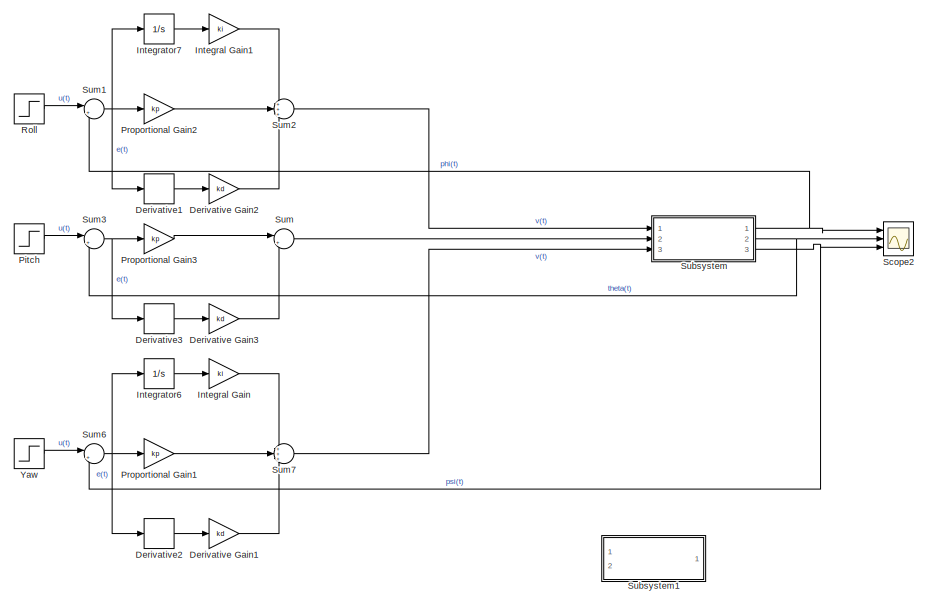
[diagram: root canvas - part 1/7, top right region]
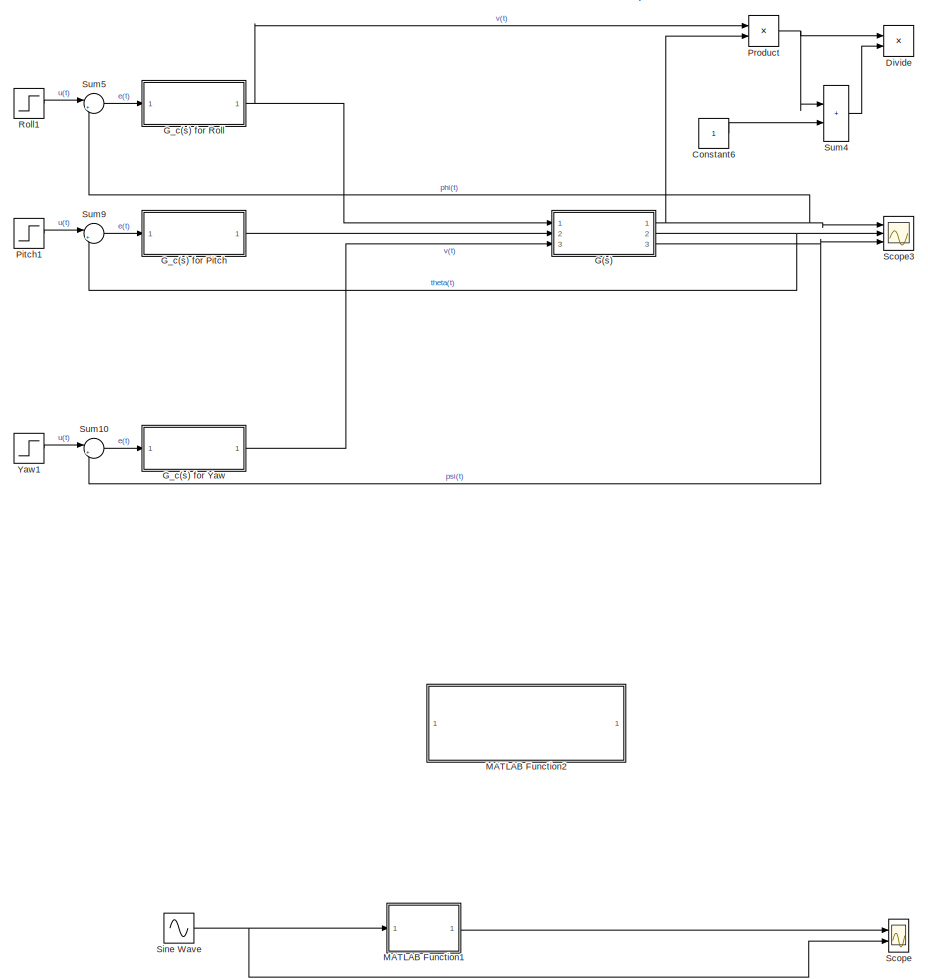
[diagram: root canvas - part 2/7, top right region]
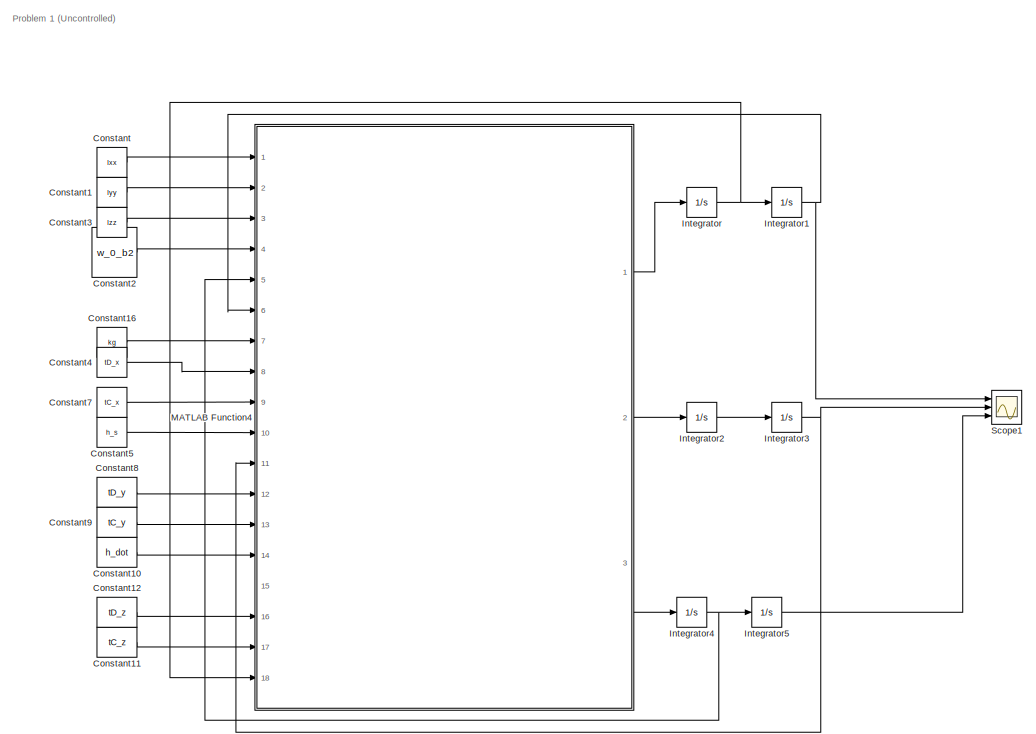
[diagram: root canvas - part 3/7, middle left region]
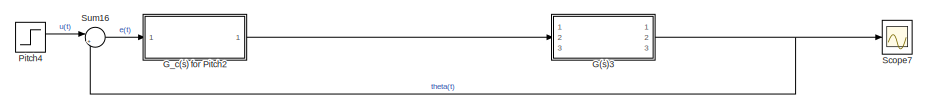
[diagram: root canvas - part 4/7, middle right region]
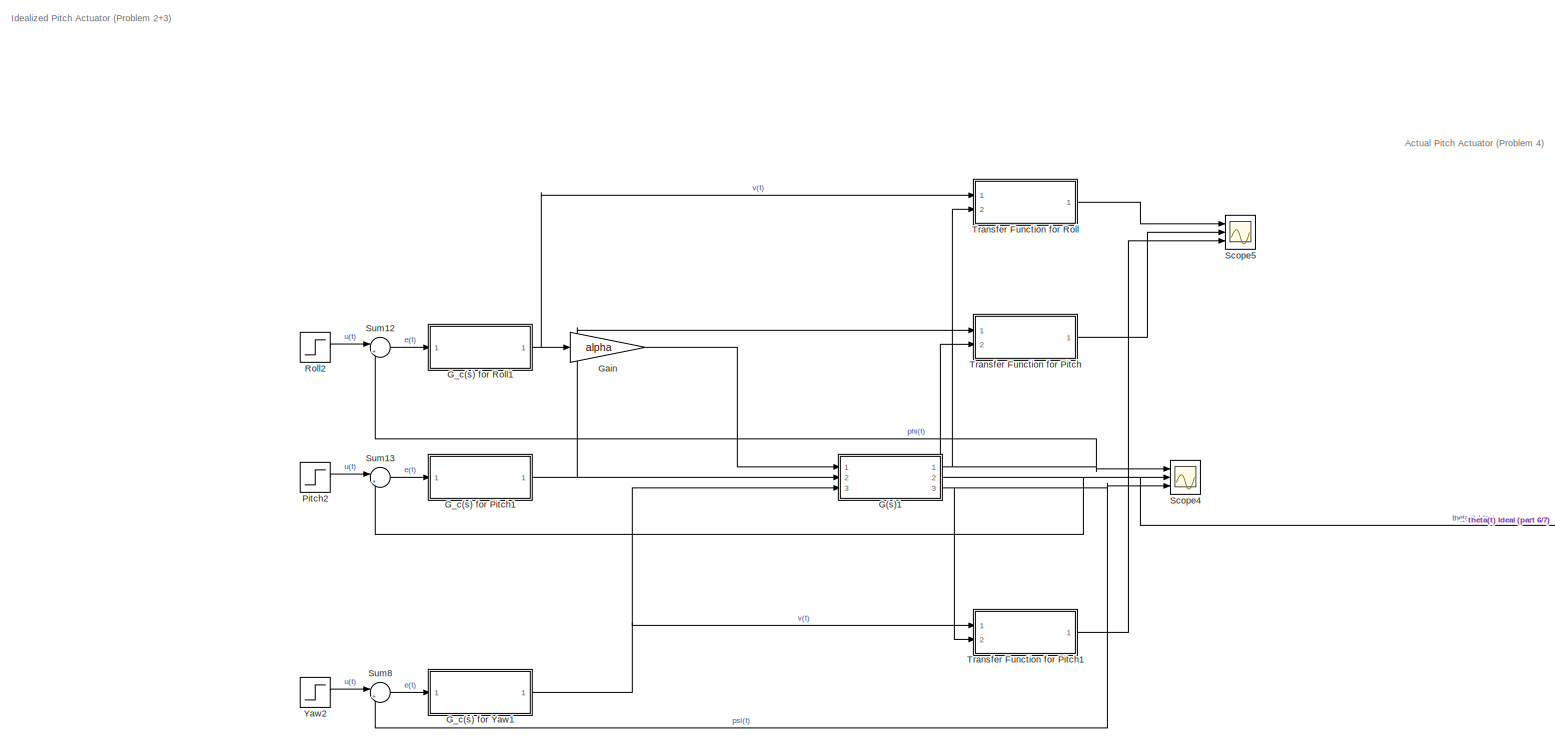
[diagram: root canvas - part 5/7, middle left region]
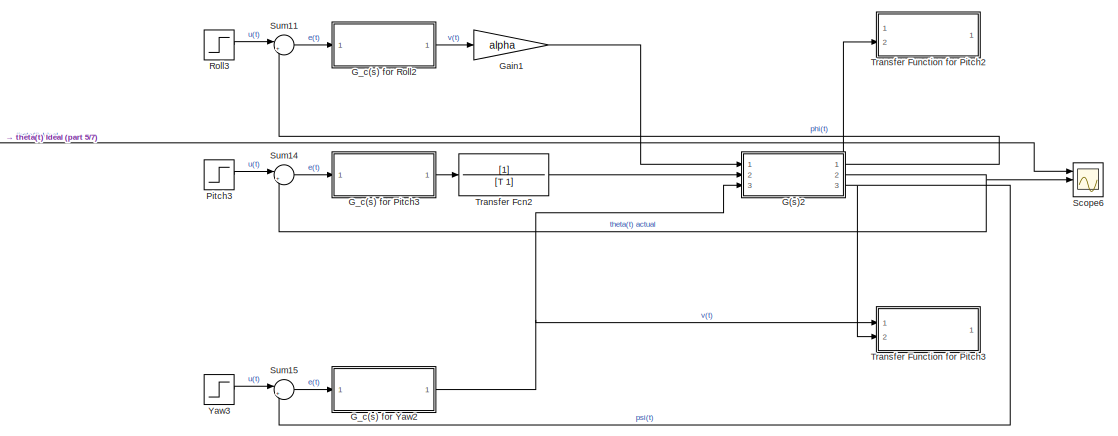
[diagram: root canvas - part 6/7, central region]
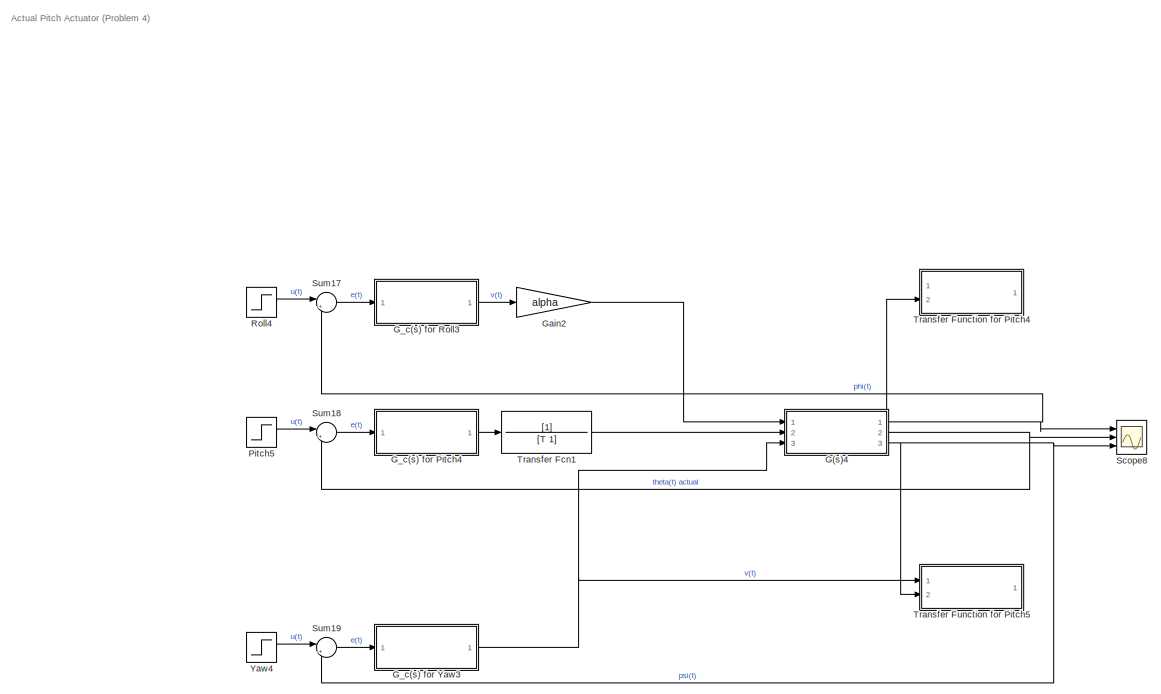
[diagram: root canvas - part 7/7, bottom left region]
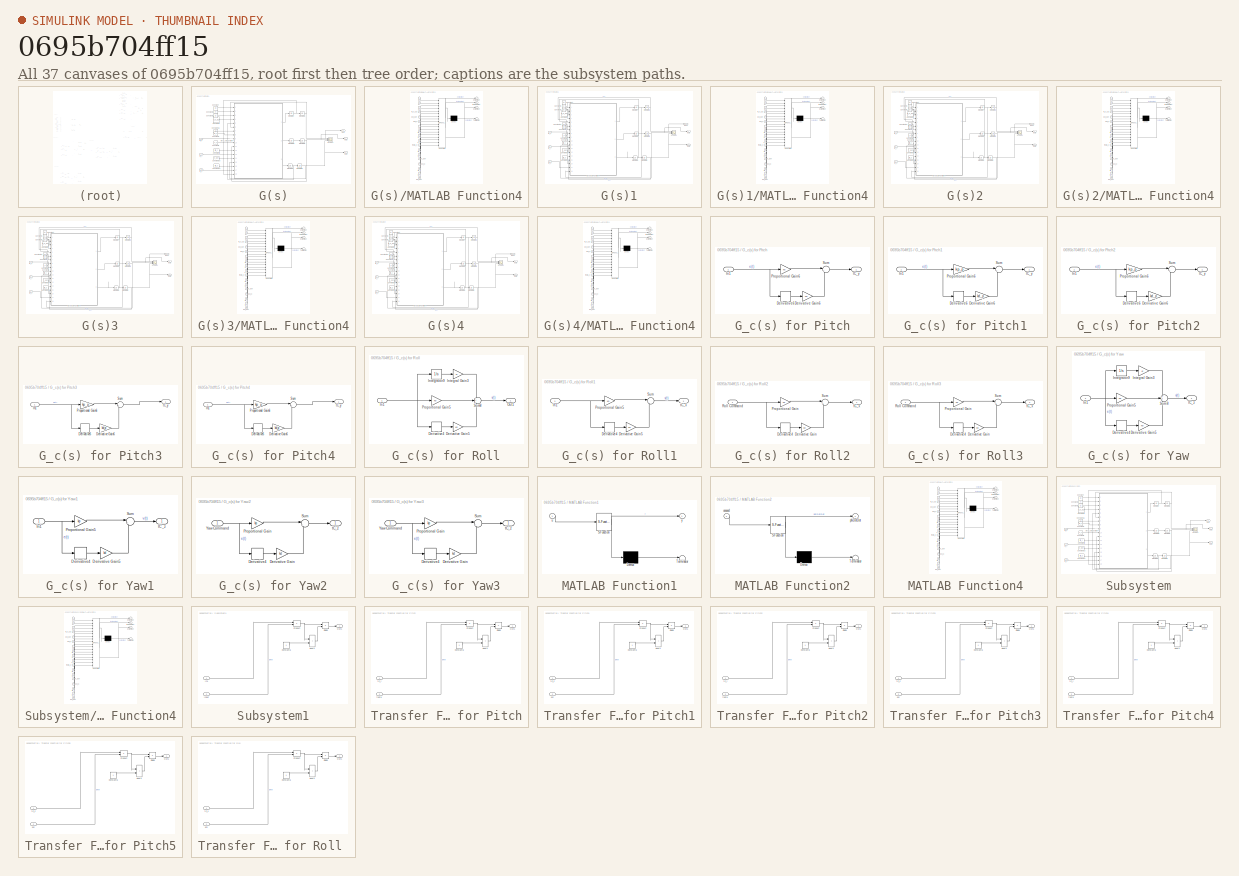
[diagram: thumbnail index - all 37 canvases of the model, root first then tree order]
MODEL slx_0695b704ff15
KIND model
CONFIG AbsTol = auto
CONFIG EnableMultiTasking = off
CONFIG FixedStep = auto
CONFIG MaxStep = auto
CONFIG MinStep = auto
CONFIG RelTol = 1e-3
CONFIG SampleTimeConstraint = Unconstrained
CONFIG SolverName = VariableStepAuto
CONFIG StartTime = 0.0
CONFIG StopTime = 200
BLOCK [Constant] Constant
  Value = Ixx
BLOCK [Constant] Constant1
  Value = Iyy
BLOCK [Constant] Constant10
  Value = h_dot
BLOCK [Constant] Constant11
  Value = tC_z
BLOCK [Constant] Constant12
  Value = tD_z
BLOCK [Constant] Constant16
  Value = kg
BLOCK [Constant] Constant2
  Value = w_0_b2
BLOCK [Constant] Constant3
  Value = Izz
BLOCK [Constant] Constant4
  Value = tD_x
BLOCK [Constant] Constant5
  Value = h_s
BLOCK [Constant] Constant6
  Commented = on
BLOCK [Constant] Constant7
  Value = tC_x
BLOCK [Constant] Constant8
  Value = tD_y
BLOCK [Constant] Constant9
  Value = tC_y
BLOCK [Gain] Derivative Gain1
  Commented = on
  Gain = kd
BLOCK [Gain] Derivative Gain2
  Commented = on
  Gain = kd
BLOCK [Gain] Derivative Gain3
  Commented = on
  Gain = kd
BLOCK [Derivative] Derivative1
  Commented = on
BLOCK [Derivative] Derivative2
  Commented = on
BLOCK [Derivative] Derivative3
  Commented = on
BLOCK [Product] Divide
  Commented = on
  Inputs = */
  Ports = [2, 1]
BLOCK [SubSystem] G(s)
  Commented = on
  Ports = [3, 3]
  RequestExecContextInheritance = off
BLOCK [Constant] G(s)/Constant
  Value = Ixx
BLOCK [Constant] G(s)/Constant1
  Value = Iyy
BLOCK [Constant] G(s)/Constant10
  Value = h_dot
BLOCK [Constant] G(s)/Constant12
  Value = tD_z
BLOCK [Constant] G(s)/Constant16
  Value = kg
BLOCK [Constant] G(s)/Constant2
  Value = w_0_b2
BLOCK [Constant] G(s)/Constant3
  Value = Izz
BLOCK [Constant] G(s)/Constant4
  Value = tD_x
BLOCK [Constant] G(s)/Constant5
  Value = h_s
BLOCK [Constant] G(s)/Constant8
  Value = tD_y
BLOCK [Integrator] G(s)/Integrator
  Ports = [1, 1]
BLOCK [Integrator] G(s)/Integrator1
  Ports = [1, 1]
BLOCK [Integrator] G(s)/Integrator2
  Ports = [1, 1]
BLOCK [Integrator] G(s)/Integrator3
  Ports = [1, 1]
BLOCK [Integrator] G(s)/Integrator4
  Ports = [1, 1]
BLOCK [Integrator] G(s)/Integrator5
  Ports = [1, 1]
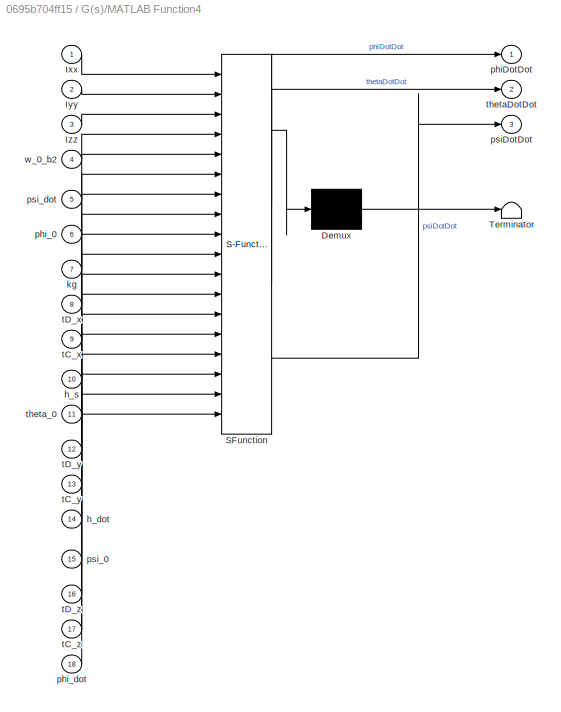
BLOCK [SubSystem] G(s)/MATLAB Function4
  ErrorFcn = Stateflow.Translate.translate
  PermitHierarchicalResolution = ExplicitOnly
  Ports = [18, 3]
  RequestExecContextInheritance = off
  SFBlockType = MATLAB Function
  TreatAsAtomicUnit = on
BLOCK [Demux] G(s)/MATLAB Function4/ Demux 
  Outputs = 1
  Ports = [1, 1]
BLOCK [S-Function] G(s)/MATLAB Function4/ SFunction 
  EnableBusSupport = on
  FunctionName = sf_sfun
  PortCounts = [18 4]
  Ports = [18, 4]
  SFcnIsStateOwnerBlock = off
  SFunctionDeploymentMode = off
  Tag = Stateflow S-Function 5
BLOCK [Terminator] G(s)/MATLAB Function4/ Terminator 
BLOCK [Inport] G(s)/MATLAB Function4/Ixx
BLOCK [Inport] G(s)/MATLAB Function4/Iyy
  Port = 2
BLOCK [Inport] G(s)/MATLAB Function4/Izz
  Port = 3
BLOCK [Inport] G(s)/MATLAB Function4/h_dot
  Port = 14
BLOCK [Inport] G(s)/MATLAB Function4/h_s
  Port = 10
BLOCK [Inport] G(s)/MATLAB Function4/kg
  Port = 7
BLOCK [Outport] G(s)/MATLAB Function4/phiDotDot
BLOCK [Inport] G(s)/MATLAB Function4/phi_0
  Port = 6
BLOCK [Inport] G(s)/MATLAB Function4/phi_dot
  Port = 18
BLOCK [Outport] G(s)/MATLAB Function4/psiDotDot
  Port = 3
BLOCK [Inport] G(s)/MATLAB Function4/psi_0
  Port = 15
BLOCK [Inport] G(s)/MATLAB Function4/psi_dot
  Port = 5
BLOCK [Inport] G(s)/MATLAB Function4/tC_x
  Port = 9
BLOCK [Inport] G(s)/MATLAB Function4/tC_y
  Port = 13
BLOCK [Inport] G(s)/MATLAB Function4/tC_z
  Port = 17
BLOCK [Inport] G(s)/MATLAB Function4/tD_x
  Port = 8
BLOCK [Inport] G(s)/MATLAB Function4/tD_y
  Port = 12
BLOCK [Inport] G(s)/MATLAB Function4/tD_z
  Port = 16
BLOCK [Outport] G(s)/MATLAB Function4/thetaDotDot
  Port = 2
BLOCK [Inport] G(s)/MATLAB Function4/theta_0
  Port = 11
BLOCK [Inport] G(s)/MATLAB Function4/w_0_b2
  Port = 4
BLOCK [Outport] G(s)/Out1
BLOCK [Outport] G(s)/Out2
  Port = 2
BLOCK [Outport] G(s)/Out3
  Port = 3
BLOCK [Scope] G(s)/Scope1
  Floating = off
  NumInputPorts = 3
  Ports = [3]
  ScopeSpecificationString = Simulink.scopes.TimeScopeBlockCfg('CurrentConfiguration', extmgr.ConfigurationSet(extmgr.Configuration('Core','General UI',true),extmgr.Configuration('Core','Source UI',true),extmgr.Configuration('Sources','WiredSimulink',true,'DataLoggingVariableName','ScopeData2'),extmgr.Configuration('Visuals','Time Domain',true,'SerializedDisplays',{struct('MinYLimReal','-0.00016','MaxYLimReal','0.00141','YLab...<+1432ch>
BLOCK [Inport] G(s)/tC_x
BLOCK [Inport] G(s)/tC_y
  Port = 2
BLOCK [Inport] G(s)/tC_z
  Port = 3
BLOCK [SubSystem] G(s)1
  Ports = [3, 3]
  RequestExecContextInheritance = off
BLOCK [Constant] G(s)1/Constant
  Value = Ixx
BLOCK [Constant] G(s)1/Constant1
  Value = Iyy
BLOCK [Constant] G(s)1/Constant10
  Value = h_dot
BLOCK [Constant] G(s)1/Constant12
  Value = tD_z
BLOCK [Constant] G(s)1/Constant16
  Value = kg
BLOCK [Constant] G(s)1/Constant2
  Value = w_0_b2
BLOCK [Constant] G(s)1/Constant3
  Value = Izz
BLOCK [Constant] G(s)1/Constant4
  Value = tD_x
BLOCK [Constant] G(s)1/Constant5
  Value = h_s
BLOCK [Constant] G(s)1/Constant8
  Value = tD_y
BLOCK [Outport] G(s)1/Input
BLOCK [Integrator] G(s)1/Integrator
  Ports = [1, 1]
BLOCK [Integrator] G(s)1/Integrator1
  Ports = [1, 1]
BLOCK [Integrator] G(s)1/Integrator2
  Ports = [1, 1]
BLOCK [Integrator] G(s)1/Integrator3
  Ports = [1, 1]
BLOCK [Integrator] G(s)1/Integrator4
  Ports = [1, 1]
BLOCK [Integrator] G(s)1/Integrator5
  Ports = [1, 1]
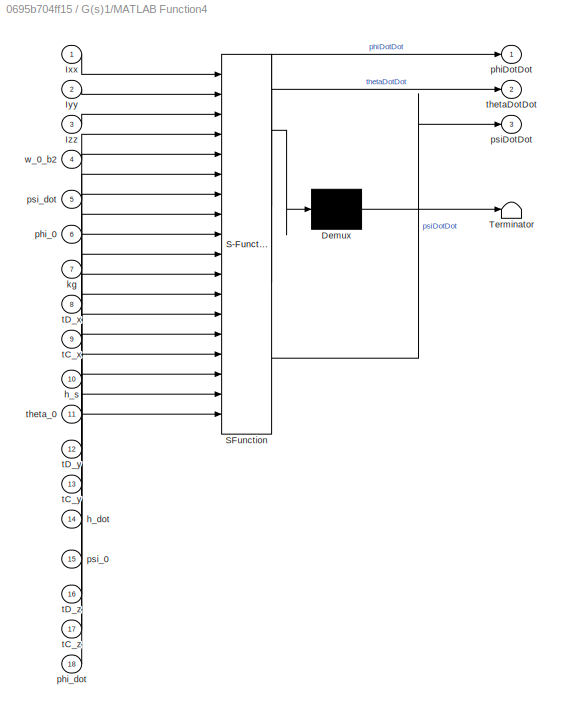
BLOCK [SubSystem] G(s)1/MATLAB Function4
  ErrorFcn = Stateflow.Translate.translate
  PermitHierarchicalResolution = ExplicitOnly
  Ports = [18, 3]
  RequestExecContextInheritance = off
  SFBlockType = MATLAB Function
  TreatAsAtomicUnit = on
BLOCK [Demux] G(s)1/MATLAB Function4/ Demux 
  Outputs = 1
  Ports = [1, 1]
BLOCK [S-Function] G(s)1/MATLAB Function4/ SFunction 
  EnableBusSupport = on
  FunctionName = sf_sfun
  PortCounts = [18 4]
  Ports = [18, 4]
  SFcnIsStateOwnerBlock = off
  SFunctionDeploymentMode = off
  Tag = Stateflow S-Function 6
BLOCK [Terminator] G(s)1/MATLAB Function4/ Terminator 
BLOCK [Inport] G(s)1/MATLAB Function4/Ixx
BLOCK [Inport] G(s)1/MATLAB Function4/Iyy
  Port = 2
BLOCK [Inport] G(s)1/MATLAB Function4/Izz
  Port = 3
BLOCK [Inport] G(s)1/MATLAB Function4/h_dot
  Port = 14
BLOCK [Inport] G(s)1/MATLAB Function4/h_s
  Port = 10
BLOCK [Inport] G(s)1/MATLAB Function4/kg
  Port = 7
BLOCK [Outport] G(s)1/MATLAB Function4/phiDotDot
BLOCK [Inport] G(s)1/MATLAB Function4/phi_0
  Port = 6
BLOCK [Inport] G(s)1/MATLAB Function4/phi_dot
  Port = 18
BLOCK [Outport] G(s)1/MATLAB Function4/psiDotDot
  Port = 3
BLOCK [Inport] G(s)1/MATLAB Function4/psi_0
  Port = 15
BLOCK [Inport] G(s)1/MATLAB Function4/psi_dot
  Port = 5
BLOCK [Inport] G(s)1/MATLAB Function4/tC_x
  Port = 9
BLOCK [Inport] G(s)1/MATLAB Function4/tC_y
  Port = 13
BLOCK [Inport] G(s)1/MATLAB Function4/tC_z
  Port = 17
BLOCK [Inport] G(s)1/MATLAB Function4/tD_x
  Port = 8
BLOCK [Inport] G(s)1/MATLAB Function4/tD_y
  Port = 12
BLOCK [Inport] G(s)1/MATLAB Function4/tD_z
  Port = 16
BLOCK [Outport] G(s)1/MATLAB Function4/thetaDotDot
  Port = 2
BLOCK [Inport] G(s)1/MATLAB Function4/theta_0
  Port = 11
BLOCK [Inport] G(s)1/MATLAB Function4/w_0_b2
  Port = 4
BLOCK [Outport] G(s)1/Out2
  Port = 2
BLOCK [Outport] G(s)1/Out3
  Port = 3
BLOCK [Scope] G(s)1/Scope1
  Floating = off
  NumInputPorts = 3
  Ports = [3]
  ScopeSpecificationString = Simulink.scopes.TimeScopeBlockCfg('CurrentConfiguration', extmgr.ConfigurationSet(extmgr.Configuration('Core','General UI',true),extmgr.Configuration('Core','Source UI',true),extmgr.Configuration('Sources','WiredSimulink',true,'DataLoggingVariableName','ScopeData2'),extmgr.Configuration('Visuals','Time Domain',true,'SerializedDisplays',{struct('MinYLimReal','-0.1335','MaxYLimReal','1.20147','YLabe...<+1374ch>
BLOCK [Inport] G(s)1/tC_x
BLOCK [Inport] G(s)1/tC_y
  Port = 2
BLOCK [Inport] G(s)1/tC_z
  Port = 3
BLOCK [SubSystem] G(s)2
  Ports = [3, 3]
  RequestExecContextInheritance = off
BLOCK [Constant] G(s)2/Constant
  Value = Ixx
BLOCK [Constant] G(s)2/Constant1
  Value = Iyy
BLOCK [Constant] G(s)2/Constant10
  Value = h_dot
BLOCK [Constant] G(s)2/Constant12
  Value = tD_z
BLOCK [Constant] G(s)2/Constant16
  Value = kg
BLOCK [Constant] G(s)2/Constant2
  Value = w_0_b2
BLOCK [Constant] G(s)2/Constant3
  Value = Izz
BLOCK [Constant] G(s)2/Constant4
  Value = tD_x
BLOCK [Constant] G(s)2/Constant5
  Value = h_s
BLOCK [Constant] G(s)2/Constant8
  Value = tD_y
BLOCK [Outport] G(s)2/Input
BLOCK [Integrator] G(s)2/Integrator
  Ports = [1, 1]
BLOCK [Integrator] G(s)2/Integrator1
  Ports = [1, 1]
BLOCK [Integrator] G(s)2/Integrator2
  Ports = [1, 1]
BLOCK [Integrator] G(s)2/Integrator3
  Ports = [1, 1]
BLOCK [Integrator] G(s)2/Integrator4
  Ports = [1, 1]
BLOCK [Integrator] G(s)2/Integrator5
  Ports = [1, 1]
BLOCK [SubSystem] G(s)2/MATLAB Function4
  ErrorFcn = Stateflow.Translate.translate
  PermitHierarchicalResolution = ExplicitOnly
  Ports = [18, 3]
  RequestExecContextInheritance = off
  SFBlockType = MATLAB Function
  TreatAsAtomicUnit = on
BLOCK [Demux] G(s)2/MATLAB Function4/ Demux 
  Outputs = 1
  Ports = [1, 1]
BLOCK [S-Function] G(s)2/MATLAB Function4/ SFunction 
  EnableBusSupport = on
  FunctionName = sf_sfun
  PortCounts = [18 4]
  Ports = [18, 4]
  SFcnIsStateOwnerBlock = off
  SFunctionDeploymentMode = off
  Tag = Stateflow S-Function 7
BLOCK [Terminator] G(s)2/MATLAB Function4/ Terminator 
BLOCK [Inport] G(s)2/MATLAB Function4/Ixx
BLOCK [Inport] G(s)2/MATLAB Function4/Iyy
  Port = 2
BLOCK [Inport] G(s)2/MATLAB Function4/Izz
  Port = 3
BLOCK [Inport] G(s)2/MATLAB Function4/h_dot
  Port = 14
BLOCK [Inport] G(s)2/MATLAB Function4/h_s
  Port = 10
BLOCK [Inport] G(s)2/MATLAB Function4/kg
  Port = 7
BLOCK [Outport] G(s)2/MATLAB Function4/phiDotDot
BLOCK [Inport] G(s)2/MATLAB Function4/phi_0
  Port = 6
BLOCK [Inport] G(s)2/MATLAB Function4/phi_dot
  Port = 18
BLOCK [Outport] G(s)2/MATLAB Function4/psiDotDot
  Port = 3
BLOCK [Inport] G(s)2/MATLAB Function4/psi_0
  Port = 15
BLOCK [Inport] G(s)2/MATLAB Function4/psi_dot
  Port = 5
BLOCK [Inport] G(s)2/MATLAB Function4/tC_x
  Port = 9
BLOCK [Inport] G(s)2/MATLAB Function4/tC_y
  Port = 13
BLOCK [Inport] G(s)2/MATLAB Function4/tC_z
  Port = 17
BLOCK [Inport] G(s)2/MATLAB Function4/tD_x
  Port = 8
BLOCK [Inport] G(s)2/MATLAB Function4/tD_y
  Port = 12
BLOCK [Inport] G(s)2/MATLAB Function4/tD_z
  Port = 16
BLOCK [Outport] G(s)2/MATLAB Function4/thetaDotDot
  Port = 2
BLOCK [Inport] G(s)2/MATLAB Function4/theta_0
  Port = 11
BLOCK [Inport] G(s)2/MATLAB Function4/w_0_b2
  Port = 4
BLOCK [Outport] G(s)2/Out2
  Port = 2
BLOCK [Outport] G(s)2/Out3
  Port = 3
BLOCK [Scope] G(s)2/Scope1
  Floating = off
  NumInputPorts = 3
  Ports = [3]
  ScopeSpecificationString = Simulink.scopes.TimeScopeBlockCfg('CurrentConfiguration', extmgr.ConfigurationSet(extmgr.Configuration('Core','General UI',true),extmgr.Configuration('Core','Source UI',true),extmgr.Configuration('Sources','WiredSimulink',true,'DataLoggingVariableName','ScopeData2'),extmgr.Configuration('Visuals','Time Domain',true,'SerializedDisplays',{struct('MinYLimReal','-0.24794','MaxYLimReal','2.23143','YLab...<+1376ch>  <repeated x3 — deduplicated; at blocks: Scope1>
BLOCK [Inport] G(s)2/tC_x
BLOCK [Inport] G(s)2/tC_y
  Port = 2
BLOCK [Inport] G(s)2/tC_z
  Port = 3
BLOCK [SubSystem] G(s)3
  Ports = [3, 3]
  RequestExecContextInheritance = off
BLOCK [Constant] G(s)3/Constant
  Value = Ixx
BLOCK [Constant] G(s)3/Constant1
  Value = Iyy
BLOCK [Constant] G(s)3/Constant10
  Value = h_dot
BLOCK [Constant] G(s)3/Constant12
  Value = tD_z
BLOCK [Constant] G(s)3/Constant16
  Value = kg
BLOCK [Constant] G(s)3/Constant2
  Value = w_0_b2
BLOCK [Constant] G(s)3/Constant3
  Value = Izz
BLOCK [Constant] G(s)3/Constant4
  Value = tD_x
BLOCK [Constant] G(s)3/Constant5
  Value = h_s
BLOCK [Constant] G(s)3/Constant8
  Value = tD_y
BLOCK [Outport] G(s)3/Input
BLOCK [Integrator] G(s)3/Integrator
  Ports = [1, 1]
BLOCK [Integrator] G(s)3/Integrator1
  Ports = [1, 1]
BLOCK [Integrator] G(s)3/Integrator2
  Ports = [1, 1]
BLOCK [Integrator] G(s)3/Integrator3
  Ports = [1, 1]
BLOCK [Integrator] G(s)3/Integrator4
  Ports = [1, 1]
BLOCK [Integrator] G(s)3/Integrator5
  Ports = [1, 1]
BLOCK [SubSystem] G(s)3/MATLAB Function4
  ErrorFcn = Stateflow.Translate.translate
  PermitHierarchicalResolution = ExplicitOnly
  Ports = [18, 3]
  RequestExecContextInheritance = off
  SFBlockType = MATLAB Function
  TreatAsAtomicUnit = on
BLOCK [Demux] G(s)3/MATLAB Function4/ Demux 
  Outputs = 1
  Ports = [1, 1]
BLOCK [S-Function] G(s)3/MATLAB Function4/ SFunction 
  EnableBusSupport = on
  FunctionName = sf_sfun
  PortCounts = [18 4]
  Ports = [18, 4]
  SFcnIsStateOwnerBlock = off
  SFunctionDeploymentMode = off
  Tag = Stateflow S-Function 8
BLOCK [Terminator] G(s)3/MATLAB Function4/ Terminator 
BLOCK [Inport] G(s)3/MATLAB Function4/Ixx
BLOCK [Inport] G(s)3/MATLAB Function4/Iyy
  Port = 2
BLOCK [Inport] G(s)3/MATLAB Function4/Izz
  Port = 3
BLOCK [Inport] G(s)3/MATLAB Function4/h_dot
  Port = 14
BLOCK [Inport] G(s)3/MATLAB Function4/h_s
  Port = 10
BLOCK [Inport] G(s)3/MATLAB Function4/kg
  Port = 7
BLOCK [Outport] G(s)3/MATLAB Function4/phiDotDot
BLOCK [Inport] G(s)3/MATLAB Function4/phi_0
  Port = 6
BLOCK [Inport] G(s)3/MATLAB Function4/phi_dot
  Port = 18
BLOCK [Outport] G(s)3/MATLAB Function4/psiDotDot
  Port = 3
BLOCK [Inport] G(s)3/MATLAB Function4/psi_0
  Port = 15
BLOCK [Inport] G(s)3/MATLAB Function4/psi_dot
  Port = 5
BLOCK [Inport] G(s)3/MATLAB Function4/tC_x
  Port = 9
BLOCK [Inport] G(s)3/MATLAB Function4/tC_y
  Port = 13
BLOCK [Inport] G(s)3/MATLAB Function4/tC_z
  Port = 17
BLOCK [Inport] G(s)3/MATLAB Function4/tD_x
  Port = 8
BLOCK [Inport] G(s)3/MATLAB Function4/tD_y
  Port = 12
BLOCK [Inport] G(s)3/MATLAB Function4/tD_z
  Port = 16
BLOCK [Outport] G(s)3/MATLAB Function4/thetaDotDot
  Port = 2
BLOCK [Inport] G(s)3/MATLAB Function4/theta_0
  Port = 11
BLOCK [Inport] G(s)3/MATLAB Function4/w_0_b2
  Port = 4
BLOCK [Outport] G(s)3/Out2
  Port = 2
BLOCK [Outport] G(s)3/Out3
  Port = 3
BLOCK [Scope] G(s)3/Scope1
  Floating = off
  NumInputPorts = 3
  Ports = [3]
BLOCK [Inport] G(s)3/tC_x
BLOCK [Inport] G(s)3/tC_y
  Port = 2
BLOCK [Inport] G(s)3/tC_z
  Port = 3
BLOCK [SubSystem] G(s)4
  Ports = [3, 3]
  RequestExecContextInheritance = off
BLOCK [Constant] G(s)4/Constant
  Value = Ixx
BLOCK [Constant] G(s)4/Constant1
  Value = Iyy
BLOCK [Constant] G(s)4/Constant10
  Value = h_dot
BLOCK [Constant] G(s)4/Constant12
  Value = tD_z
BLOCK [Constant] G(s)4/Constant16
  Value = kg
BLOCK [Constant] G(s)4/Constant2
  Value = w_0_b2
BLOCK [Constant] G(s)4/Constant3
  Value = Izz
BLOCK [Constant] G(s)4/Constant4
  Value = tD_x
BLOCK [Constant] G(s)4/Constant5
  Value = h_s
BLOCK [Constant] G(s)4/Constant8
  Value = tD_y
BLOCK [Outport] G(s)4/Input
BLOCK [Integrator] G(s)4/Integrator
  Ports = [1, 1]
BLOCK [Integrator] G(s)4/Integrator1
  Ports = [1, 1]
BLOCK [Integrator] G(s)4/Integrator2
  Ports = [1, 1]
BLOCK [Integrator] G(s)4/Integrator3
  Ports = [1, 1]
BLOCK [Integrator] G(s)4/Integrator4
  Ports = [1, 1]
BLOCK [Integrator] G(s)4/Integrator5
  Ports = [1, 1]
BLOCK [SubSystem] G(s)4/MATLAB Function4
  ErrorFcn = Stateflow.Translate.translate
  PermitHierarchicalResolution = ExplicitOnly
  Ports = [18, 3]
  RequestExecContextInheritance = off
  SFBlockType = MATLAB Function
  TreatAsAtomicUnit = on
BLOCK [Demux] G(s)4/MATLAB Function4/ Demux 
  Outputs = 1
  Ports = [1, 1]
BLOCK [S-Function] G(s)4/MATLAB Function4/ SFunction 
  EnableBusSupport = on
  FunctionName = sf_sfun
  PortCounts = [18 4]
  Ports = [18, 4]
  SFcnIsStateOwnerBlock = off
  SFunctionDeploymentMode = off
  Tag = Stateflow S-Function 9
BLOCK [Terminator] G(s)4/MATLAB Function4/ Terminator 
BLOCK [Inport] G(s)4/MATLAB Function4/Ixx
BLOCK [Inport] G(s)4/MATLAB Function4/Iyy
  Port = 2
BLOCK [Inport] G(s)4/MATLAB Function4/Izz
  Port = 3
BLOCK [Inport] G(s)4/MATLAB Function4/h_dot
  Port = 14
BLOCK [Inport] G(s)4/MATLAB Function4/h_s
  Port = 10
BLOCK [Inport] G(s)4/MATLAB Function4/kg
  Port = 7
BLOCK [Outport] G(s)4/MATLAB Function4/phiDotDot
BLOCK [Inport] G(s)4/MATLAB Function4/phi_0
  Port = 6
BLOCK [Inport] G(s)4/MATLAB Function4/phi_dot
  Port = 18
BLOCK [Outport] G(s)4/MATLAB Function4/psiDotDot
  Port = 3
BLOCK [Inport] G(s)4/MATLAB Function4/psi_0
  Port = 15
BLOCK [Inport] G(s)4/MATLAB Function4/psi_dot
  Port = 5
BLOCK [Inport] G(s)4/MATLAB Function4/tC_x
  Port = 9
BLOCK [Inport] G(s)4/MATLAB Function4/tC_y
  Port = 13
BLOCK [Inport] G(s)4/MATLAB Function4/tC_z
  Port = 17
BLOCK [Inport] G(s)4/MATLAB Function4/tD_x
  Port = 8
BLOCK [Inport] G(s)4/MATLAB Function4/tD_y
  Port = 12
BLOCK [Inport] G(s)4/MATLAB Function4/tD_z
  Port = 16
BLOCK [Outport] G(s)4/MATLAB Function4/thetaDotDot
  Port = 2
BLOCK [Inport] G(s)4/MATLAB Function4/theta_0
  Port = 11
BLOCK [Inport] G(s)4/MATLAB Function4/w_0_b2
  Port = 4
BLOCK [Outport] G(s)4/Out2
  Port = 2
BLOCK [Outport] G(s)4/Out3
  Port = 3
BLOCK [Scope] G(s)4/Scope1
  Floating = off
  NumInputPorts = 3
  Ports = [3]
BLOCK [Inport] G(s)4/tC_x
BLOCK [Inport] G(s)4/tC_y
  Port = 2
BLOCK [Inport] G(s)4/tC_z
  Port = 3
BLOCK [SubSystem] G_c(s) for Pitch
  Commented = on
  Ports = [1, 1]
  RequestExecContextInheritance = off
BLOCK [Gain] G_c(s) for Pitch/Derivative Gain6
  Gain = kd
BLOCK [Derivative] G_c(s) for Pitch/Derivative6
BLOCK [Inport] G_c(s) for Pitch/In1
BLOCK [Gain] G_c(s) for Pitch/Proportional Gain6
  Gain = kp
BLOCK [Sum] G_c(s) for Pitch/Sum
  Inputs = |++
  Ports = [2, 1]
BLOCK [Outport] G_c(s) for Pitch/tC_y
BLOCK [SubSystem] G_c(s) for Pitch1
  Ports = [1, 1]
  RequestExecContextInheritance = off
BLOCK [Gain] G_c(s) for Pitch1/Derivative Gain6
  Gain = kd_p
BLOCK [Derivative] G_c(s) for Pitch1/Derivative6
BLOCK [Inport] G_c(s) for Pitch1/In1
BLOCK [Gain] G_c(s) for Pitch1/Proportional Gain6
  Gain = kp_p
BLOCK [Sum] G_c(s) for Pitch1/Sum
  Inputs = |++
  Ports = [2, 1]
BLOCK [Outport] G_c(s) for Pitch1/tC_y
BLOCK [SubSystem] G_c(s) for Pitch2
  Ports = [1, 1]
  RequestExecContextInheritance = off
BLOCK [Gain] G_c(s) for Pitch2/Derivative Gain6
  Gain = kd_p
BLOCK [Derivative] G_c(s) for Pitch2/Derivative6
BLOCK [Inport] G_c(s) for Pitch2/In1
BLOCK [Gain] G_c(s) for Pitch2/Proportional Gain6
  Gain = kp_p
BLOCK [Sum] G_c(s) for Pitch2/Sum
  Inputs = |++
  Ports = [2, 1]
BLOCK [Outport] G_c(s) for Pitch2/tC_y
BLOCK [SubSystem] G_c(s) for Pitch3
  Ports = [1, 1]
  RequestExecContextInheritance = off
BLOCK [Gain] G_c(s) for Pitch3/Derivative Gain6
  Gain = kd_p
BLOCK [Derivative] G_c(s) for Pitch3/Derivative6
BLOCK [Inport] G_c(s) for Pitch3/In1
BLOCK [Gain] G_c(s) for Pitch3/Proportional Gain6
  Gain = kp_p
BLOCK [Sum] G_c(s) for Pitch3/Sum
  Inputs = |++
  Ports = [2, 1]
BLOCK [Outport] G_c(s) for Pitch3/tC_y
BLOCK [SubSystem] G_c(s) for Pitch4
  Ports = [1, 1]
  RequestExecContextInheritance = off
BLOCK [Gain] G_c(s) for Pitch4/Derivative Gain6
  Gain = kd_p
BLOCK [Derivative] G_c(s) for Pitch4/Derivative6
BLOCK [Inport] G_c(s) for Pitch4/In1
BLOCK [Gain] G_c(s) for Pitch4/Proportional Gain6
  Gain = kp_p
BLOCK [Sum] G_c(s) for Pitch4/Sum
  Inputs = |++
  Ports = [2, 1]
BLOCK [Outport] G_c(s) for Pitch4/tC_y
BLOCK [SubSystem] G_c(s) for Roll
  Commented = on
  Ports = [1, 1]
  RequestExecContextInheritance = off
BLOCK [Gain] G_c(s) for Roll/Derivative Gain5
  Gain = kd
BLOCK [Derivative] G_c(s) for Roll/Derivative4
BLOCK [Inport] G_c(s) for Roll/In1
BLOCK [Gain] G_c(s) for Roll/Integral Gain3
  Gain = ki
BLOCK [Integrator] G_c(s) for Roll/Integrator9
  Ports = [1, 1]
BLOCK [Outport] G_c(s) for Roll/Out1
BLOCK [Gain] G_c(s) for Roll/Proportional Gain5
  Gain = kp
BLOCK [Sum] G_c(s) for Roll/Sum8
  Inputs = +++
  Ports = [3, 1]
BLOCK [SubSystem] G_c(s) for Roll1
  Ports = [1, 1]
  RequestExecContextInheritance = off
BLOCK [Gain] G_c(s) for Roll1/Derivative Gain5
  Gain = kd
BLOCK [Derivative] G_c(s) for Roll1/Derivative4
BLOCK [Inport] G_c(s) for Roll1/In1
BLOCK [Gain] G_c(s) for Roll1/Proportional Gain5
  Gain = kp
BLOCK [Sum] G_c(s) for Roll1/Sum
  Inputs = |++
  Ports = [2, 1]
BLOCK [Outport] G_c(s) for Roll1/tC_x
BLOCK [SubSystem] G_c(s) for Roll2
  Ports = [1, 1]
  RequestExecContextInheritance = off
BLOCK [Gain] G_c(s) for Roll2/Derivative Gain
  Gain = kd
BLOCK [Derivative] G_c(s) for Roll2/Derivative4
BLOCK [Gain] G_c(s) for Roll2/Proportional Gain
  Gain = kp
BLOCK [Inport] G_c(s) for Roll2/Roll Command
BLOCK [Sum] G_c(s) for Roll2/Sum
  Inputs = |++
  Ports = [2, 1]
BLOCK [Outport] G_c(s) for Roll2/tC_x
BLOCK [SubSystem] G_c(s) for Roll3
  Ports = [1, 1]
  RequestExecContextInheritance = off
BLOCK [Gain] G_c(s) for Roll3/Derivative Gain
  Gain = kd
BLOCK [Derivative] G_c(s) for Roll3/Derivative4
BLOCK [Gain] G_c(s) for Roll3/Proportional Gain
  Gain = kp
BLOCK [Inport] G_c(s) for Roll3/Roll Command
BLOCK [Sum] G_c(s) for Roll3/Sum
  Inputs = |++
  Ports = [2, 1]
BLOCK [Outport] G_c(s) for Roll3/tC_x
BLOCK [SubSystem] G_c(s) for Yaw
  Commented = on
  Ports = [1, 1]
  RequestExecContextInheritance = off
BLOCK [Gain] G_c(s) for Yaw/Derivative Gain5
  Gain = kd
BLOCK [Derivative] G_c(s) for Yaw/Derivative4
BLOCK [Inport] G_c(s) for Yaw/In1
BLOCK [Gain] G_c(s) for Yaw/Integral Gain3
  Gain = ki
BLOCK [Integrator] G_c(s) for Yaw/Integrator9
  Ports = [1, 1]
BLOCK [Gain] G_c(s) for Yaw/Proportional Gain5
  Gain = kp
BLOCK [Sum] G_c(s) for Yaw/Sum8
  Inputs = +++
  Ports = [3, 1]
BLOCK [Outport] G_c(s) for Yaw/tC_z
BLOCK [SubSystem] G_c(s) for Yaw1
  Ports = [1, 1]
  RequestExecContextInheritance = off
BLOCK [Gain] G_c(s) for Yaw1/Derivative Gain5
  Gain = kd
BLOCK [Derivative] G_c(s) for Yaw1/Derivative4
BLOCK [Inport] G_c(s) for Yaw1/In1
BLOCK [Gain] G_c(s) for Yaw1/Proportional Gain5
  Gain = kp
BLOCK [Sum] G_c(s) for Yaw1/Sum
  Inputs = |++
  Ports = [2, 1]
BLOCK [Outport] G_c(s) for Yaw1/tC_z
BLOCK [SubSystem] G_c(s) for Yaw2
  Ports = [1, 1]
  RequestExecContextInheritance = off
BLOCK [Gain] G_c(s) for Yaw2/Derivative Gain
  Gain = kd
BLOCK [Derivative] G_c(s) for Yaw2/Derivative4
BLOCK [Gain] G_c(s) for Yaw2/Proportional Gain
  Gain = kp
BLOCK [Sum] G_c(s) for Yaw2/Sum
  Inputs = |++
  Ports = [2, 1]
BLOCK [Inport] G_c(s) for Yaw2/Yaw Command
BLOCK [Outport] G_c(s) for Yaw2/tC_z
BLOCK [SubSystem] G_c(s) for Yaw3
  Ports = [1, 1]
  RequestExecContextInheritance = off
BLOCK [Gain] G_c(s) for Yaw3/Derivative Gain
  Gain = kd
BLOCK [Derivative] G_c(s) for Yaw3/Derivative4
BLOCK [Gain] G_c(s) for Yaw3/Proportional Gain
  Gain = kp
BLOCK [Sum] G_c(s) for Yaw3/Sum
  Inputs = |++
  Ports = [2, 1]
BLOCK [Inport] G_c(s) for Yaw3/Yaw Command
BLOCK [Outport] G_c(s) for Yaw3/tC_z
BLOCK [Gain] Gain
  Gain = alpha
BLOCK [Gain] Gain1
  Gain = alpha
BLOCK [Gain] Gain2
  Gain = alpha
BLOCK [Gain] Integral Gain
  Commented = on
  Gain = ki
BLOCK [Gain] Integral Gain1
  Commented = on
  Gain = ki
BLOCK [Integrator] Integrator
  Ports = [1, 1]
BLOCK [Integrator] Integrator1
  Ports = [1, 1]
BLOCK [Integrator] Integrator2
  Ports = [1, 1]
BLOCK [Integrator] Integrator3
  Ports = [1, 1]
BLOCK [Integrator] Integrator4
  Ports = [1, 1]
BLOCK [Integrator] Integrator5
  Ports = [1, 1]
BLOCK [Integrator] Integrator6
  Commented = on
  Ports = [1, 1]
BLOCK [Integrator] Integrator7
  Commented = on
  Ports = [1, 1]
BLOCK [SubSystem] MATLAB Function1
  Commented = on
  ErrorFcn = Stateflow.Translate.translate
  PermitHierarchicalResolution = ExplicitOnly
  Ports = [1, 1]
  RequestExecContextInheritance = off
  SFBlockType = MATLAB Function
  TreatAsAtomicUnit = on
BLOCK [Demux] MATLAB Function1/ Demux 
  Outputs = 1
  Ports = [1, 1]
BLOCK [S-Function] MATLAB Function1/ SFunction 
  EnableBusSupport = on
  FunctionName = sf_sfun
  PortCounts = [1 2]
  Ports = [1, 2]
  SFcnIsStateOwnerBlock = off
  SFunctionDeploymentMode = off
  Tag = Stateflow S-Function 1
BLOCK [Terminator] MATLAB Function1/ Terminator 
BLOCK [Inport] MATLAB Function1/u
BLOCK [Outport] MATLAB Function1/y
BLOCK [SubSystem] MATLAB Function2
  Commented = on
  ErrorFcn = Stateflow.Translate.translate
  PermitHierarchicalResolution = ExplicitOnly
  Ports = [1, 1]
  RequestExecContextInheritance = off
  SFBlockType = MATLAB Function
  TreatAsAtomicUnit = on
BLOCK [Demux] MATLAB Function2/ Demux 
  Outputs = 1
  Ports = [1, 1]
BLOCK [S-Function] MATLAB Function2/ SFunction 
  EnableBusSupport = on
  FunctionName = sf_sfun
  PortCounts = [1 2]
  Ports = [1, 2]
  SFcnIsStateOwnerBlock = off
  SFunctionDeploymentMode = off
  Tag = Stateflow S-Function 3
BLOCK [Terminator] MATLAB Function2/ Terminator 
BLOCK [Outport] MATLAB Function2/phiDotDot
BLOCK [Inport] MATLAB Function2/unused
BLOCK [SubSystem] MATLAB Function4
  ErrorFcn = Stateflow.Translate.translate
  PermitHierarchicalResolution = ExplicitOnly
  Ports = [18, 3]
  RequestExecContextInheritance = off
  SFBlockType = MATLAB Function
  TreatAsAtomicUnit = on
BLOCK [Demux] MATLAB Function4/ Demux 
  Outputs = 1
  Ports = [1, 1]
BLOCK [S-Function] MATLAB Function4/ SFunction 
  EnableBusSupport = on
  FunctionName = sf_sfun
  PortCounts = [18 4]
  Ports = [18, 4]
  SFcnIsStateOwnerBlock = off
  SFunctionDeploymentMode = off
  Tag = Stateflow S-Function 2
BLOCK [Terminator] MATLAB Function4/ Terminator 
BLOCK [Inport] MATLAB Function4/Ixx
BLOCK [Inport] MATLAB Function4/Iyy
  Port = 2
BLOCK [Inport] MATLAB Function4/Izz
  Port = 3
BLOCK [Inport] MATLAB Function4/h_dot
  Port = 14
BLOCK [Inport] MATLAB Function4/h_s
  Port = 10
BLOCK [Inport] MATLAB Function4/kg
  Port = 7
BLOCK [Outport] MATLAB Function4/phiDotDot
BLOCK [Inport] MATLAB Function4/phi_0
  Port = 6
BLOCK [Inport] MATLAB Function4/phi_dot
  Port = 18
BLOCK [Outport] MATLAB Function4/psiDotDot
  Port = 3
BLOCK [Inport] MATLAB Function4/psi_0
  Port = 15
BLOCK [Inport] MATLAB Function4/psi_dot
  Port = 5
BLOCK [Inport] MATLAB Function4/tC_x
  Port = 9
BLOCK [Inport] MATLAB Function4/tC_y
  Port = 13
BLOCK [Inport] MATLAB Function4/tC_z
  Port = 17
BLOCK [Inport] MATLAB Function4/tD_x
  Port = 8
BLOCK [Inport] MATLAB Function4/tD_y
  Port = 12
BLOCK [Inport] MATLAB Function4/tD_z
  Port = 16
BLOCK [Outport] MATLAB Function4/thetaDotDot
  Port = 2
BLOCK [Inport] MATLAB Function4/theta_0
  Port = 11
BLOCK [Inport] MATLAB Function4/w_0_b2
  Port = 4
BLOCK [Step] Pitch
  Commented = on
  SampleTime = 0
BLOCK [Step] Pitch1
  Commented = on
  SampleTime = 0
BLOCK [Step] Pitch2
  SampleTime = 0
BLOCK [Step] Pitch3
  SampleTime = 0
BLOCK [Step] Pitch4
  SampleTime = 0
BLOCK [Step] Pitch5
  SampleTime = 0
BLOCK [Product] Product
  Commented = on
  Ports = [2, 1]
BLOCK [Gain] Proportional Gain1
  Commented = on
  Gain = kp
BLOCK [Gain] Proportional Gain2
  Commented = on
  Gain = kp
BLOCK [Gain] Proportional Gain3
  Commented = on
  Gain = kp
BLOCK [Step] Roll
  Commented = on
  SampleTime = 0
BLOCK [Step] Roll1
  Commented = on
  SampleTime = 0
BLOCK [Step] Roll2
  SampleTime = 0
BLOCK [Step] Roll3
  SampleTime = 0
BLOCK [Step] Roll4
  SampleTime = 0
BLOCK [Scope] Scope
  Commented = on
  Floating = off
  NumInputPorts = 2
  Ports = [2]
  ScopeSpecificationString = Simulink.scopes.TimeScopeBlockCfg('CurrentConfiguration', extmgr.ConfigurationSet(extmgr.Configuration('Core','General UI',true),extmgr.Configuration('Core','Source UI',true),extmgr.Configuration('Sources','WiredSimulink',true),extmgr.Configuration('Visuals','Time Domain',true,'SerializedDisplays',{struct('MinYLimReal','-1.25','MaxYLimReal','1.25','YLabelReal','','MinYLimMag','0.00000','MaxYLimMag...<+1330ch>
BLOCK [Scope] Scope1
  Floating = off
  NumInputPorts = 3
  Ports = [3]
  ScopeSpecificationString = Simulink.scopes.TimeScopeBlockCfg('CurrentConfiguration', extmgr.ConfigurationSet(extmgr.Configuration('Core','General UI',true),extmgr.Configuration('Core','Source UI',true),extmgr.Configuration('Sources','WiredSimulink',true,'DataLoggingVariableName','UnControlled','DataLogging',true,'DataLoggingSaveFormat','StructureWithTime'),extmgr.Configuration('Visuals','Time Domain',true,'SerializedDisplay...<+1523ch>
BLOCK [Scope] Scope2
  Commented = on
  Floating = off
  NumInputPorts = 3
  Ports = [3]
  ScopeSpecificationString = Simulink.scopes.TimeScopeBlockCfg('CurrentConfiguration', extmgr.ConfigurationSet(extmgr.Configuration('Core','General UI',true),extmgr.Configuration('Core','Source UI',true),extmgr.Configuration('Sources','WiredSimulink',true,'DataLoggingVariableName','eulerAngles','DataLogging',true,'DataLoggingSaveFormat','StructureWithTime'),extmgr.Configuration('Visuals','Time Domain',true,'SerializedDisplays...<+1475ch>
BLOCK [Scope] Scope3
  Commented = on
  Floating = off
  NumInputPorts = 3
  Ports = [3]
  ScopeSpecificationString = Simulink.scopes.TimeScopeBlockCfg('CurrentConfiguration', extmgr.ConfigurationSet(extmgr.Configuration('Core','General UI',true),extmgr.Configuration('Core','Source UI',true),extmgr.Configuration('Sources','WiredSimulink',true,'DataLoggingVariableName','eulerAngles1','DataLogging',true,'DataLoggingSaveFormat','StructureWithTime'),extmgr.Configuration('Visuals','Time Domain',true,'SerializedDisplay...<+1450ch>
BLOCK [Scope] Scope4
  Floating = off
  NumInputPorts = 3
  Ports = [3]
  ScopeSpecificationString = Simulink.scopes.TimeScopeBlockCfg('CurrentConfiguration', extmgr.ConfigurationSet(extmgr.Configuration('Core','General UI',true),extmgr.Configuration('Core','Source UI',true),extmgr.Configuration('Sources','WiredSimulink',true,'DataLoggingVariableName','eulerAngles2','DataLogging',true,'DataLoggingSaveFormat','StructureWithTime'),extmgr.Configuration('Visuals','Time Domain',true,'SerializedDisplay...<+1485ch>
BLOCK [Scope] Scope5
  Floating = off
  NumInputPorts = 3
  Ports = [3]
  ScopeSpecificationString = Simulink.scopes.TimeScopeBlockCfg('CurrentConfiguration', extmgr.ConfigurationSet(extmgr.Configuration('Core','General UI',true),extmgr.Configuration('Core','Source UI',true),extmgr.Configuration('Sources','WiredSimulink',true,'DataLoggingVariableName','ScopeData1'),extmgr.Configuration('Visuals','Time Domain',true,'SerializedDisplays',{struct('MinYLimReal','-0.48093','MaxYLimReal','1.16455','YLab...<+1447ch>
BLOCK [Scope] Scope6
  Floating = off
  NumInputPorts = 3
  Ports = [3]
  ScopeSpecificationString = Simulink.scopes.TimeScopeBlockCfg('CurrentConfiguration', extmgr.ConfigurationSet(extmgr.Configuration('Core','General UI',true),extmgr.Configuration('Core','Source UI',true),extmgr.Configuration('Sources','WiredSimulink',true,'DataLoggingVariableName','problem5Comparsion','DataLogging',true,'DataLoggingSaveFormat','StructureWithTime'),extmgr.Configuration('Visuals','Time Domain',true,'SerializedD...<+1542ch>
BLOCK [Scope] Scope7
  Floating = off
  NumInputPorts = 3
  Ports = [3]
  ScopeSpecificationString = Simulink.scopes.TimeScopeBlockCfg('CurrentConfiguration', extmgr.ConfigurationSet(extmgr.Configuration('Core','General UI',true),extmgr.Configuration('Core','Source UI',true),extmgr.Configuration('Sources','WiredSimulink',true,'DataLoggingVariableName','ScopeData1','DataLogging',true,'DataLoggingSaveFormat','StructureWithTime'),extmgr.Configuration('Visuals','Time Domain',true,'SerializedDisplays'...<+1483ch>
BLOCK [Scope] Scope8
  Floating = off
  NumInputPorts = 3
  Ports = [3]
  ScopeSpecificationString = Simulink.scopes.TimeScopeBlockCfg('CurrentConfiguration', extmgr.ConfigurationSet(extmgr.Configuration('Core','General UI',true),extmgr.Configuration('Core','Source UI',true),extmgr.Configuration('Sources','WiredSimulink',true,'DataLoggingVariableName','ScopeData2','DataLogging',true,'DataLoggingSaveFormat','StructureWithTime'),extmgr.Configuration('Visuals','Time Domain',true,'SerializedDisplays'...<+1534ch>
BLOCK [Sin] Sine Wave
  Commented = on
  NameLocation = left
  Ports = [0, 1]
  SampleTime = 0
BLOCK [SubSystem] Subsystem
  Commented = on
  Ports = [3, 3]
  RequestExecContextInheritance = off
BLOCK [Constant] Subsystem/Constant
  Value = Ixx
BLOCK [Constant] Subsystem/Constant1
  Value = Iyy
BLOCK [Constant] Subsystem/Constant10
  Value = h_dot
BLOCK [Constant] Subsystem/Constant12
  Value = tD_z
BLOCK [Constant] Subsystem/Constant16
  Value = kg
BLOCK [Constant] Subsystem/Constant2
  Value = w_0_b2
BLOCK [Constant] Subsystem/Constant3
  Value = Izz
BLOCK [Constant] Subsystem/Constant4
  Value = tD_x
BLOCK [Constant] Subsystem/Constant5
  Value = h_s
BLOCK [Constant] Subsystem/Constant8
  Value = tD_y
BLOCK [Integrator] Subsystem/Integrator
  Ports = [1, 1]
BLOCK [Integrator] Subsystem/Integrator1
  Ports = [1, 1]
BLOCK [Integrator] Subsystem/Integrator2
  Ports = [1, 1]
BLOCK [Integrator] Subsystem/Integrator3
  Ports = [1, 1]
BLOCK [Integrator] Subsystem/Integrator4
  Ports = [1, 1]
BLOCK [Integrator] Subsystem/Integrator5
  Ports = [1, 1]
BLOCK [SubSystem] Subsystem/MATLAB Function4
  ErrorFcn = Stateflow.Translate.translate
  PermitHierarchicalResolution = ExplicitOnly
  Ports = [18, 3]
  RequestExecContextInheritance = off
  SFBlockType = MATLAB Function
  TreatAsAtomicUnit = on
BLOCK [Demux] Subsystem/MATLAB Function4/ Demux 
  Outputs = 1
  Ports = [1, 1]
BLOCK [S-Function] Subsystem/MATLAB Function4/ SFunction 
  EnableBusSupport = on
  FunctionName = sf_sfun
  PortCounts = [18 4]
  Ports = [18, 4]
  SFcnIsStateOwnerBlock = off
  SFunctionDeploymentMode = off
  Tag = Stateflow S-Function 4
BLOCK [Terminator] Subsystem/MATLAB Function4/ Terminator 
BLOCK [Inport] Subsystem/MATLAB Function4/Ixx
BLOCK [Inport] Subsystem/MATLAB Function4/Iyy
  Port = 2
BLOCK [Inport] Subsystem/MATLAB Function4/Izz
  Port = 3
BLOCK [Inport] Subsystem/MATLAB Function4/h_dot
  Port = 14
BLOCK [Inport] Subsystem/MATLAB Function4/h_s
  Port = 10
BLOCK [Inport] Subsystem/MATLAB Function4/kg
  Port = 7
BLOCK [Outport] Subsystem/MATLAB Function4/phiDotDot
BLOCK [Inport] Subsystem/MATLAB Function4/phi_0
  Port = 6
BLOCK [Inport] Subsystem/MATLAB Function4/phi_dot
  Port = 18
BLOCK [Outport] Subsystem/MATLAB Function4/psiDotDot
  Port = 3
BLOCK [Inport] Subsystem/MATLAB Function4/psi_0
  Port = 15
BLOCK [Inport] Subsystem/MATLAB Function4/psi_dot
  Port = 5
BLOCK [Inport] Subsystem/MATLAB Function4/tC_x
  Port = 9
BLOCK [Inport] Subsystem/MATLAB Function4/tC_y
  Port = 13
BLOCK [Inport] Subsystem/MATLAB Function4/tC_z
  Port = 17
BLOCK [Inport] Subsystem/MATLAB Function4/tD_x
  Port = 8
BLOCK [Inport] Subsystem/MATLAB Function4/tD_y
  Port = 12
BLOCK [Inport] Subsystem/MATLAB Function4/tD_z
  Port = 16
BLOCK [Outport] Subsystem/MATLAB Function4/thetaDotDot
  Port = 2
BLOCK [Inport] Subsystem/MATLAB Function4/theta_0
  Port = 11
BLOCK [Inport] Subsystem/MATLAB Function4/w_0_b2
  Port = 4
BLOCK [Outport] Subsystem/Out1
BLOCK [Outport] Subsystem/Out2
  Port = 2
BLOCK [Outport] Subsystem/Out3
  Port = 3
BLOCK [Scope] Subsystem/Scope1
  Floating = off
  NumInputPorts = 3
  Ports = [3]
  ScopeSpecificationString = Simulink.scopes.TimeScopeBlockCfg('CurrentConfiguration', extmgr.ConfigurationSet(extmgr.Configuration('Core','General UI',true),extmgr.Configuration('Core','Source UI',true),extmgr.Configuration('Sources','WiredSimulink',true,'DataLoggingVariableName','ScopeData2'),extmgr.Configuration('Visuals','Time Domain',true,'SerializedDisplays',{struct('MinYLimReal','-0.00016','MaxYLimReal','0.00141','YLab...<+1432ch>
BLOCK [Inport] Subsystem/tC_x
BLOCK [Inport] Subsystem/tC_y
  Port = 2
BLOCK [Inport] Subsystem/tC_z
  Port = 3
BLOCK [SubSystem] Subsystem1
  Commented = on
  Ports = [2, 1]
  RequestExecContextInheritance = off
BLOCK [Constant] Subsystem1/Constant6
BLOCK [Product] Subsystem1/Divide
  Inputs = */
  Ports = [2, 1]
BLOCK [Inport] Subsystem1/In1
BLOCK [Inport] Subsystem1/Input
  Port = 2
BLOCK [Outport] Subsystem1/Out1
BLOCK [Product] Subsystem1/Product
  Ports = [2, 1]
BLOCK [Sum] Subsystem1/Sum4
  IconShape = rectangular
  Inputs = |++
  Ports = [2, 1]
BLOCK [Sum] Sum
  Commented = on
  Inputs = |++
  Ports = [2, 1]
BLOCK [Sum] Sum1
  Commented = on
  Inputs = |+-
  Ports = [2, 1]
BLOCK [Sum] Sum10
  Commented = on
  Inputs = |+-
  Ports = [2, 1]
BLOCK [Sum] Sum11
  Inputs = |+-
  Ports = [2, 1]
BLOCK [Sum] Sum12
  Inputs = |+-
  Ports = [2, 1]
BLOCK [Sum] Sum13
  Inputs = |+-
  Ports = [2, 1]
BLOCK [Sum] Sum14
  Inputs = |+-
  Ports = [2, 1]
BLOCK [Sum] Sum15
  Inputs = |+-
  Ports = [2, 1]
BLOCK [Sum] Sum16
  Inputs = |+-
  Ports = [2, 1]
BLOCK [Sum] Sum17
  Inputs = |+-
  Ports = [2, 1]
BLOCK [Sum] Sum18
  Inputs = |+-
  Ports = [2, 1]
BLOCK [Sum] Sum19
  Inputs = |+-
  Ports = [2, 1]
BLOCK [Sum] Sum2
  Commented = on
  Inputs = +++
  Ports = [3, 1]
BLOCK [Sum] Sum3
  Commented = on
  Inputs = |+-
  Ports = [2, 1]
BLOCK [Sum] Sum4
  Commented = on
  IconShape = rectangular
  Inputs = |++
  Ports = [2, 1]
BLOCK [Sum] Sum5
  Commented = on
  Inputs = |+-
  Ports = [2, 1]
BLOCK [Sum] Sum6
  Commented = on
  Inputs = |+-
  Ports = [2, 1]
BLOCK [Sum] Sum7
  Commented = on
  Inputs = +++
  Ports = [3, 1]
BLOCK [Sum] Sum8
  Inputs = |+-
  Ports = [2, 1]
BLOCK [Sum] Sum9
  Commented = on
  Inputs = |+-
  Ports = [2, 1]
BLOCK [TransferFcn] Transfer Fcn1
  Denominator = [T 1]
BLOCK [TransferFcn] Transfer Fcn2
  Denominator = [T 1]
BLOCK [SubSystem] Transfer Function for Pitch
  Ports = [2, 1]
  RequestExecContextInheritance = off
BLOCK [Constant] Transfer Function for Pitch/Constant6
BLOCK [Product] Transfer Function for Pitch/Divide
  Inputs = */
  Ports = [2, 1]
BLOCK [Outport] Transfer Function for Pitch/Out1
BLOCK [Product] Transfer Function for Pitch/Product
  Ports = [2, 1]
BLOCK [Sum] Transfer Function for Pitch/Sum4
  IconShape = rectangular
  Inputs = |++
  Ports = [2, 1]
BLOCK [Inport] Transfer Function for Pitch/tC_y
BLOCK [Inport] Transfer Function for Pitch/theta
  Port = 2
BLOCK [SubSystem] Transfer Function for Pitch1
  Ports = [2, 1]
  RequestExecContextInheritance = off
BLOCK [Constant] Transfer Function for Pitch1/Constant6
BLOCK [Product] Transfer Function for Pitch1/Divide
  Inputs = */
  Ports = [2, 1]
BLOCK [Outport] Transfer Function for Pitch1/Out1
BLOCK [Product] Transfer Function for Pitch1/Product
  Ports = [2, 1]
BLOCK [Sum] Transfer Function for Pitch1/Sum4
  IconShape = rectangular
  Inputs = |++
  Ports = [2, 1]
BLOCK [Inport] Transfer Function for Pitch1/psi
  Port = 2
BLOCK [Inport] Transfer Function for Pitch1/tC_z
BLOCK [SubSystem] Transfer Function for Pitch2
  Ports = [2, 1]
  RequestExecContextInheritance = off
BLOCK [Constant] Transfer Function for Pitch2/Constant6
BLOCK [Product] Transfer Function for Pitch2/Divide
  Inputs = */
  Ports = [2, 1]
BLOCK [Outport] Transfer Function for Pitch2/Out1
BLOCK [Product] Transfer Function for Pitch2/Product
  Ports = [2, 1]
BLOCK [Sum] Transfer Function for Pitch2/Sum4
  IconShape = rectangular
  Inputs = |++
  Ports = [2, 1]
BLOCK [Inport] Transfer Function for Pitch2/tC_y
BLOCK [Inport] Transfer Function for Pitch2/theta
  Port = 2
BLOCK [SubSystem] Transfer Function for Pitch3
  Ports = [2, 1]
  RequestExecContextInheritance = off
BLOCK [Constant] Transfer Function for Pitch3/Constant6
BLOCK [Product] Transfer Function for Pitch3/Divide
  Inputs = */
  Ports = [2, 1]
BLOCK [Outport] Transfer Function for Pitch3/Out1
BLOCK [Product] Transfer Function for Pitch3/Product
  Ports = [2, 1]
BLOCK [Sum] Transfer Function for Pitch3/Sum4
  IconShape = rectangular
  Inputs = |++
  Ports = [2, 1]
BLOCK [Inport] Transfer Function for Pitch3/psi
  Port = 2
BLOCK [Inport] Transfer Function for Pitch3/tC_z
BLOCK [SubSystem] Transfer Function for Pitch4
  Ports = [2, 1]
  RequestExecContextInheritance = off
BLOCK [Constant] Transfer Function for Pitch4/Constant6
BLOCK [Product] Transfer Function for Pitch4/Divide
  Inputs = */
  Ports = [2, 1]
BLOCK [Outport] Transfer Function for Pitch4/Out1
BLOCK [Product] Transfer Function for Pitch4/Product
  Ports = [2, 1]
BLOCK [Sum] Transfer Function for Pitch4/Sum4
  IconShape = rectangular
  Inputs = |++
  Ports = [2, 1]
BLOCK [Inport] Transfer Function for Pitch4/tC_y
BLOCK [Inport] Transfer Function for Pitch4/theta
  Port = 2
BLOCK [SubSystem] Transfer Function for Pitch5
  Ports = [2, 1]
  RequestExecContextInheritance = off
BLOCK [Constant] Transfer Function for Pitch5/Constant6
BLOCK [Product] Transfer Function for Pitch5/Divide
  Inputs = */
  Ports = [2, 1]
BLOCK [Outport] Transfer Function for Pitch5/Out1
BLOCK [Product] Transfer Function for Pitch5/Product
  Ports = [2, 1]
BLOCK [Sum] Transfer Function for Pitch5/Sum4
  IconShape = rectangular
  Inputs = |++
  Ports = [2, 1]
BLOCK [Inport] Transfer Function for Pitch5/psi
  Port = 2
BLOCK [Inport] Transfer Function for Pitch5/tC_z
BLOCK [SubSystem] Transfer Function for Roll 
  Ports = [2, 1]
  RequestExecContextInheritance = off
BLOCK [Constant] Transfer Function for Roll /Constant6
BLOCK [Product] Transfer Function for Roll /Divide
  Inputs = */
  Ports = [2, 1]
BLOCK [Outport] Transfer Function for Roll /Out1
BLOCK [Product] Transfer Function for Roll /Product
  Ports = [2, 1]
BLOCK [Sum] Transfer Function for Roll /Sum4
  IconShape = rectangular
  Inputs = |++
  Ports = [2, 1]
BLOCK [Inport] Transfer Function for Roll /phi
  Port = 2
BLOCK [Inport] Transfer Function for Roll /tC_x
BLOCK [Step] Yaw
  Commented = on
  SampleTime = 0
BLOCK [Step] Yaw1
  Commented = on
  SampleTime = 0
BLOCK [Step] Yaw2
  SampleTime = 0
BLOCK [Step] Yaw3
  SampleTime = 0
BLOCK [Step] Yaw4
  SampleTime = 0
ANNOTATION (root): Actual Pitch Actuator (Problem 4)
ANNOTATION (root): Idealized Pitch Actuator (Problem 2+3)
ANNOTATION (root): Problem 1 (Uncontrolled)
LINE Constant10:1 -> MATLAB Function4:14
LINE Constant11:1 -> MATLAB Function4:17
LINE Constant12:1 -> MATLAB Function4:16
LINE Constant16:1 -> MATLAB Function4:7
LINE Constant1:1 -> MATLAB Function4:2
LINE Constant2:1 -> MATLAB Function4:4
LINE Constant3:1 -> MATLAB Function4:3
LINE Constant4:1 -> MATLAB Function4:8
LINE Constant5:1 -> MATLAB Function4:10
LINE Constant6:1 -> Sum4:2
LINE Constant7:1 -> MATLAB Function4:9
LINE Constant8:1 -> MATLAB Function4:12
LINE Constant9:1 -> MATLAB Function4:13
LINE Constant:1 -> MATLAB Function4:1
LINE Derivative Gain1:1 -> Sum7:3
LINE Derivative Gain2:1 -> Sum2:3
LINE Derivative Gain3:1 -> Sum:2
LINE Derivative1:1 -> Derivative Gain2:1
LINE Derivative2:1 -> Derivative Gain1:1
LINE Derivative3:1 -> Derivative Gain3:1
LINE G(s)/Constant10:1 -> G(s)/MATLAB Function4:14
LINE G(s)/Constant12:1 -> G(s)/MATLAB Function4:16
LINE G(s)/Constant16:1 -> G(s)/MATLAB Function4:7
LINE G(s)/Constant1:1 -> G(s)/MATLAB Function4:2
LINE G(s)/Constant2:1 -> G(s)/MATLAB Function4:4
LINE G(s)/Constant3:1 -> G(s)/MATLAB Function4:3
LINE G(s)/Constant4:1 -> G(s)/MATLAB Function4:8
LINE G(s)/Constant5:1 -> G(s)/MATLAB Function4:10
LINE G(s)/Constant8:1 -> G(s)/MATLAB Function4:12
LINE G(s)/Constant:1 -> G(s)/MATLAB Function4:1
NET G(s)/Integrator1:1 -> G(s)/MATLAB Function4:6, G(s)/Out1:1, G(s)/Scope1:1
LINE G(s)/Integrator2:1 -> G(s)/Integrator3:1
NET G(s)/Integrator3:1 -> G(s)/MATLAB Function4:11, G(s)/Out2:1, G(s)/Scope1:2
NET G(s)/Integrator4:1 -> G(s)/Integrator5:1, G(s)/MATLAB Function4:5
NET G(s)/Integrator5:1 -> G(s)/MATLAB Function4:15, G(s)/Out3:1, G(s)/Scope1:3
NET G(s)/Integrator:1 -> G(s)/Integrator1:1, G(s)/MATLAB Function4:18
LINE G(s)/MATLAB Function4:1 -> G(s)/Integrator:1
LINE G(s)/MATLAB Function4:2 -> G(s)/Integrator2:1
LINE G(s)/MATLAB Function4:3 -> G(s)/Integrator4:1
LINE G(s)/tC_x:1 -> G(s)/MATLAB Function4:9
LINE G(s)/tC_y:1 -> G(s)/MATLAB Function4:13
LINE G(s)/tC_z:1 -> G(s)/MATLAB Function4:17
LINE G(s)1/Constant10:1 -> G(s)1/MATLAB Function4:14
LINE G(s)1/Constant12:1 -> G(s)1/MATLAB Function4:16
LINE G(s)1/Constant16:1 -> G(s)1/MATLAB Function4:7
LINE G(s)1/Constant1:1 -> G(s)1/MATLAB Function4:2
LINE G(s)1/Constant2:1 -> G(s)1/MATLAB Function4:4
LINE G(s)1/Constant3:1 -> G(s)1/MATLAB Function4:3
LINE G(s)1/Constant4:1 -> G(s)1/MATLAB Function4:8
LINE G(s)1/Constant5:1 -> G(s)1/MATLAB Function4:10
LINE G(s)1/Constant8:1 -> G(s)1/MATLAB Function4:12
LINE G(s)1/Constant:1 -> G(s)1/MATLAB Function4:1
NET G(s)1/Integrator1:1 -> G(s)1/Input:1, G(s)1/MATLAB Function4:6, G(s)1/Scope1:1
LINE G(s)1/Integrator2:1 -> G(s)1/Integrator3:1
NET G(s)1/Integrator3:1 -> G(s)1/MATLAB Function4:11, G(s)1/Out2:1, G(s)1/Scope1:2
NET G(s)1/Integrator4:1 -> G(s)1/Integrator5:1, G(s)1/MATLAB Function4:5
NET G(s)1/Integrator5:1 -> G(s)1/MATLAB Function4:15, G(s)1/Out3:1, G(s)1/Scope1:3
NET G(s)1/Integrator:1 -> G(s)1/Integrator1:1, G(s)1/MATLAB Function4:18
LINE G(s)1/MATLAB Function4:1 -> G(s)1/Integrator:1
LINE G(s)1/MATLAB Function4:2 -> G(s)1/Integrator2:1
LINE G(s)1/MATLAB Function4:3 -> G(s)1/Integrator4:1
LINE G(s)1/tC_x:1 -> G(s)1/MATLAB Function4:9
LINE G(s)1/tC_y:1 -> G(s)1/MATLAB Function4:13
LINE G(s)1/tC_z:1 -> G(s)1/MATLAB Function4:17
NET G(s)1:1 -> Scope4:1, Sum12:2, Transfer Function for Roll :2
NET G(s)1:2 -> Scope4:2, Scope6:1, Sum13:2, Transfer Function for Pitch:2
NET G(s)1:3 -> Scope4:3, Sum8:2, Transfer Function for Pitch1:2
LINE G(s)2/Constant10:1 -> G(s)2/MATLAB Function4:14
LINE G(s)2/Constant12:1 -> G(s)2/MATLAB Function4:16
LINE G(s)2/Constant16:1 -> G(s)2/MATLAB Function4:7
LINE G(s)2/Constant1:1 -> G(s)2/MATLAB Function4:2
LINE G(s)2/Constant2:1 -> G(s)2/MATLAB Function4:4
LINE G(s)2/Constant3:1 -> G(s)2/MATLAB Function4:3
LINE G(s)2/Constant4:1 -> G(s)2/MATLAB Function4:8
LINE G(s)2/Constant5:1 -> G(s)2/MATLAB Function4:10
LINE G(s)2/Constant8:1 -> G(s)2/MATLAB Function4:12
LINE G(s)2/Constant:1 -> G(s)2/MATLAB Function4:1
NET G(s)2/Integrator1:1 -> G(s)2/Input:1, G(s)2/MATLAB Function4:6, G(s)2/Scope1:1
LINE G(s)2/Integrator2:1 -> G(s)2/Integrator3:1
NET G(s)2/Integrator3:1 -> G(s)2/MATLAB Function4:11, G(s)2/Out2:1, G(s)2/Scope1:2
NET G(s)2/Integrator4:1 -> G(s)2/Integrator5:1, G(s)2/MATLAB Function4:5
NET G(s)2/Integrator5:1 -> G(s)2/MATLAB Function4:15, G(s)2/Out3:1, G(s)2/Scope1:3
NET G(s)2/Integrator:1 -> G(s)2/Integrator1:1, G(s)2/MATLAB Function4:18
LINE G(s)2/MATLAB Function4:1 -> G(s)2/Integrator:1
LINE G(s)2/MATLAB Function4:2 -> G(s)2/Integrator2:1
LINE G(s)2/MATLAB Function4:3 -> G(s)2/Integrator4:1
LINE G(s)2/tC_x:1 -> G(s)2/MATLAB Function4:9
LINE G(s)2/tC_y:1 -> G(s)2/MATLAB Function4:13
LINE G(s)2/tC_z:1 -> G(s)2/MATLAB Function4:17
LINE G(s)2:1 -> Sum11:2
NET G(s)2:2 -> Scope6:2, Sum14:2, Transfer Function for Pitch2:2
NET G(s)2:3 -> Sum15:2, Transfer Function for Pitch3:2
LINE G(s)3/Constant10:1 -> G(s)3/MATLAB Function4:14
LINE G(s)3/Constant12:1 -> G(s)3/MATLAB Function4:16
LINE G(s)3/Constant16:1 -> G(s)3/MATLAB Function4:7
LINE G(s)3/Constant1:1 -> G(s)3/MATLAB Function4:2
LINE G(s)3/Constant2:1 -> G(s)3/MATLAB Function4:4
LINE G(s)3/Constant3:1 -> G(s)3/MATLAB Function4:3
LINE G(s)3/Constant4:1 -> G(s)3/MATLAB Function4:8
LINE G(s)3/Constant5:1 -> G(s)3/MATLAB Function4:10
LINE G(s)3/Constant8:1 -> G(s)3/MATLAB Function4:12
LINE G(s)3/Constant:1 -> G(s)3/MATLAB Function4:1
NET G(s)3/Integrator1:1 -> G(s)3/Input:1, G(s)3/MATLAB Function4:6, G(s)3/Scope1:1
LINE G(s)3/Integrator2:1 -> G(s)3/Integrator3:1
NET G(s)3/Integrator3:1 -> G(s)3/MATLAB Function4:11, G(s)3/Out2:1, G(s)3/Scope1:2
NET G(s)3/Integrator4:1 -> G(s)3/Integrator5:1, G(s)3/MATLAB Function4:5
NET G(s)3/Integrator5:1 -> G(s)3/MATLAB Function4:15, G(s)3/Out3:1, G(s)3/Scope1:3
NET G(s)3/Integrator:1 -> G(s)3/Integrator1:1, G(s)3/MATLAB Function4:18
LINE G(s)3/MATLAB Function4:1 -> G(s)3/Integrator:1
LINE G(s)3/MATLAB Function4:2 -> G(s)3/Integrator2:1
LINE G(s)3/MATLAB Function4:3 -> G(s)3/Integrator4:1
LINE G(s)3/tC_x:1 -> G(s)3/MATLAB Function4:9
LINE G(s)3/tC_y:1 -> G(s)3/MATLAB Function4:13
LINE G(s)3/tC_z:1 -> G(s)3/MATLAB Function4:17
NET G(s)3:2 -> Scope7:2, Sum16:2
LINE G(s)4/Constant10:1 -> G(s)4/MATLAB Function4:14
LINE G(s)4/Constant12:1 -> G(s)4/MATLAB Function4:16
LINE G(s)4/Constant16:1 -> G(s)4/MATLAB Function4:7
LINE G(s)4/Constant1:1 -> G(s)4/MATLAB Function4:2
LINE G(s)4/Constant2:1 -> G(s)4/MATLAB Function4:4
LINE G(s)4/Constant3:1 -> G(s)4/MATLAB Function4:3
LINE G(s)4/Constant4:1 -> G(s)4/MATLAB Function4:8
LINE G(s)4/Constant5:1 -> G(s)4/MATLAB Function4:10
LINE G(s)4/Constant8:1 -> G(s)4/MATLAB Function4:12
LINE G(s)4/Constant:1 -> G(s)4/MATLAB Function4:1
NET G(s)4/Integrator1:1 -> G(s)4/Input:1, G(s)4/MATLAB Function4:6, G(s)4/Scope1:1
LINE G(s)4/Integrator2:1 -> G(s)4/Integrator3:1
NET G(s)4/Integrator3:1 -> G(s)4/MATLAB Function4:11, G(s)4/Out2:1, G(s)4/Scope1:2
NET G(s)4/Integrator4:1 -> G(s)4/Integrator5:1, G(s)4/MATLAB Function4:5
NET G(s)4/Integrator5:1 -> G(s)4/MATLAB Function4:15, G(s)4/Out3:1, G(s)4/Scope1:3
NET G(s)4/Integrator:1 -> G(s)4/Integrator1:1, G(s)4/MATLAB Function4:18
LINE G(s)4/MATLAB Function4:1 -> G(s)4/Integrator:1
LINE G(s)4/MATLAB Function4:2 -> G(s)4/Integrator2:1
LINE G(s)4/MATLAB Function4:3 -> G(s)4/Integrator4:1
LINE G(s)4/tC_x:1 -> G(s)4/MATLAB Function4:9
LINE G(s)4/tC_y:1 -> G(s)4/MATLAB Function4:13
LINE G(s)4/tC_z:1 -> G(s)4/MATLAB Function4:17
NET G(s)4:1 -> Scope8:1, Sum17:2
NET G(s)4:2 -> Scope8:2, Sum18:2, Transfer Function for Pitch4:2
NET G(s)4:3 -> Scope8:3, Sum19:2, Transfer Function for Pitch5:2
NET G(s):1 -> Product:2, Scope3:1, Sum5:2
NET G(s):2 -> Scope3:2, Sum9:2
NET G(s):3 -> Scope3:3, Sum10:2
LINE G_c(s) for Pitch/Derivative Gain6:1 -> G_c(s) for Pitch/Sum:2
LINE G_c(s) for Pitch/Derivative6:1 -> G_c(s) for Pitch/Derivative Gain6:1
NET G_c(s) for Pitch/In1:1 -> G_c(s) for Pitch/Derivative6:1, G_c(s) for Pitch/Proportional Gain6:1
LINE G_c(s) for Pitch/Proportional Gain6:1 -> G_c(s) for Pitch/Sum:1
LINE G_c(s) for Pitch/Sum:1 -> G_c(s) for Pitch/tC_y:1
LINE G_c(s) for Pitch1/Derivative Gain6:1 -> G_c(s) for Pitch1/Sum:2
LINE G_c(s) for Pitch1/Derivative6:1 -> G_c(s) for Pitch1/Derivative Gain6:1
NET G_c(s) for Pitch1/In1:1 -> G_c(s) for Pitch1/Derivative6:1, G_c(s) for Pitch1/Proportional Gain6:1
LINE G_c(s) for Pitch1/Proportional Gain6:1 -> G_c(s) for Pitch1/Sum:1
LINE G_c(s) for Pitch1/Sum:1 -> G_c(s) for Pitch1/tC_y:1
NET G_c(s) for Pitch1:1 -> G(s)1:2, Transfer Function for Pitch:1
LINE G_c(s) for Pitch2/Derivative Gain6:1 -> G_c(s) for Pitch2/Sum:2
LINE G_c(s) for Pitch2/Derivative6:1 -> G_c(s) for Pitch2/Derivative Gain6:1
NET G_c(s) for Pitch2/In1:1 -> G_c(s) for Pitch2/Derivative6:1, G_c(s) for Pitch2/Proportional Gain6:1
LINE G_c(s) for Pitch2/Proportional Gain6:1 -> G_c(s) for Pitch2/Sum:1
LINE G_c(s) for Pitch2/Sum:1 -> G_c(s) for Pitch2/tC_y:1
LINE G_c(s) for Pitch2:1 -> G(s)3:2
LINE G_c(s) for Pitch3/Derivative Gain6:1 -> G_c(s) for Pitch3/Sum:2
LINE G_c(s) for Pitch3/Derivative6:1 -> G_c(s) for Pitch3/Derivative Gain6:1
NET G_c(s) for Pitch3/In1:1 -> G_c(s) for Pitch3/Derivative6:1, G_c(s) for Pitch3/Proportional Gain6:1
LINE G_c(s) for Pitch3/Proportional Gain6:1 -> G_c(s) for Pitch3/Sum:1
LINE G_c(s) for Pitch3/Sum:1 -> G_c(s) for Pitch3/tC_y:1
LINE G_c(s) for Pitch3:1 -> Transfer Fcn2:1
LINE G_c(s) for Pitch4/Derivative Gain6:1 -> G_c(s) for Pitch4/Sum:2
LINE G_c(s) for Pitch4/Derivative6:1 -> G_c(s) for Pitch4/Derivative Gain6:1
NET G_c(s) for Pitch4/In1:1 -> G_c(s) for Pitch4/Derivative6:1, G_c(s) for Pitch4/Proportional Gain6:1
LINE G_c(s) for Pitch4/Proportional Gain6:1 -> G_c(s) for Pitch4/Sum:1
LINE G_c(s) for Pitch4/Sum:1 -> G_c(s) for Pitch4/tC_y:1
LINE G_c(s) for Pitch4:1 -> Transfer Fcn1:1
LINE G_c(s) for Pitch:1 -> G(s):2
LINE G_c(s) for Roll/Derivative Gain5:1 -> G_c(s) for Roll/Sum8:3
LINE G_c(s) for Roll/Derivative4:1 -> G_c(s) for Roll/Derivative Gain5:1
NET G_c(s) for Roll/In1:1 -> G_c(s) for Roll/Derivative4:1, G_c(s) for Roll/Integrator9:1, G_c(s) for Roll/Proportional Gain5:1
LINE G_c(s) for Roll/Integral Gain3:1 -> G_c(s) for Roll/Sum8:1
LINE G_c(s) for Roll/Integrator9:1 -> G_c(s) for Roll/Integral Gain3:1
LINE G_c(s) for Roll/Proportional Gain5:1 -> G_c(s) for Roll/Sum8:2
LINE G_c(s) for Roll/Sum8:1 -> G_c(s) for Roll/Out1:1
LINE G_c(s) for Roll1/Derivative Gain5:1 -> G_c(s) for Roll1/Sum:2
LINE G_c(s) for Roll1/Derivative4:1 -> G_c(s) for Roll1/Derivative Gain5:1
NET G_c(s) for Roll1/In1:1 -> G_c(s) for Roll1/Derivative4:1, G_c(s) for Roll1/Proportional Gain5:1
LINE G_c(s) for Roll1/Proportional Gain5:1 -> G_c(s) for Roll1/Sum:1
LINE G_c(s) for Roll1/Sum:1 -> G_c(s) for Roll1/tC_x:1
NET G_c(s) for Roll1:1 -> Gain:1, Transfer Function for Roll :1
LINE G_c(s) for Roll2/Derivative Gain:1 -> G_c(s) for Roll2/Sum:2
LINE G_c(s) for Roll2/Derivative4:1 -> G_c(s) for Roll2/Derivative Gain:1
LINE G_c(s) for Roll2/Proportional Gain:1 -> G_c(s) for Roll2/Sum:1
NET G_c(s) for Roll2/Roll Command:1 -> G_c(s) for Roll2/Derivative4:1, G_c(s) for Roll2/Proportional Gain:1
LINE G_c(s) for Roll2/Sum:1 -> G_c(s) for Roll2/tC_x:1
LINE G_c(s) for Roll2:1 -> Gain1:1
LINE G_c(s) for Roll3/Derivative Gain:1 -> G_c(s) for Roll3/Sum:2
LINE G_c(s) for Roll3/Derivative4:1 -> G_c(s) for Roll3/Derivative Gain:1
LINE G_c(s) for Roll3/Proportional Gain:1 -> G_c(s) for Roll3/Sum:1
NET G_c(s) for Roll3/Roll Command:1 -> G_c(s) for Roll3/Derivative4:1, G_c(s) for Roll3/Proportional Gain:1
LINE G_c(s) for Roll3/Sum:1 -> G_c(s) for Roll3/tC_x:1
LINE G_c(s) for Roll3:1 -> Gain2:1
NET G_c(s) for Roll:1 -> G(s):1, Product:1
LINE G_c(s) for Yaw/Derivative Gain5:1 -> G_c(s) for Yaw/Sum8:3
LINE G_c(s) for Yaw/Derivative4:1 -> G_c(s) for Yaw/Derivative Gain5:1
NET G_c(s) for Yaw/In1:1 -> G_c(s) for Yaw/Derivative4:1, G_c(s) for Yaw/Integrator9:1, G_c(s) for Yaw/Proportional Gain5:1
LINE G_c(s) for Yaw/Integral Gain3:1 -> G_c(s) for Yaw/Sum8:1
LINE G_c(s) for Yaw/Integrator9:1 -> G_c(s) for Yaw/Integral Gain3:1
LINE G_c(s) for Yaw/Proportional Gain5:1 -> G_c(s) for Yaw/Sum8:2
LINE G_c(s) for Yaw/Sum8:1 -> G_c(s) for Yaw/tC_z:1
LINE G_c(s) for Yaw1/Derivative Gain5:1 -> G_c(s) for Yaw1/Sum:2
LINE G_c(s) for Yaw1/Derivative4:1 -> G_c(s) for Yaw1/Derivative Gain5:1
NET G_c(s) for Yaw1/In1:1 -> G_c(s) for Yaw1/Derivative4:1, G_c(s) for Yaw1/Proportional Gain5:1
LINE G_c(s) for Yaw1/Proportional Gain5:1 -> G_c(s) for Yaw1/Sum:1
LINE G_c(s) for Yaw1/Sum:1 -> G_c(s) for Yaw1/tC_z:1
NET G_c(s) for Yaw1:1 -> G(s)1:3, Transfer Function for Pitch1:1
LINE G_c(s) for Yaw2/Derivative Gain:1 -> G_c(s) for Yaw2/Sum:2
LINE G_c(s) for Yaw2/Derivative4:1 -> G_c(s) for Yaw2/Derivative Gain:1
LINE G_c(s) for Yaw2/Proportional Gain:1 -> G_c(s) for Yaw2/Sum:1
LINE G_c(s) for Yaw2/Sum:1 -> G_c(s) for Yaw2/tC_z:1
NET G_c(s) for Yaw2/Yaw Command:1 -> G_c(s) for Yaw2/Derivative4:1, G_c(s) for Yaw2/Proportional Gain:1
NET G_c(s) for Yaw2:1 -> G(s)2:3, Transfer Function for Pitch3:1
LINE G_c(s) for Yaw3/Derivative Gain:1 -> G_c(s) for Yaw3/Sum:2
LINE G_c(s) for Yaw3/Derivative4:1 -> G_c(s) for Yaw3/Derivative Gain:1
LINE G_c(s) for Yaw3/Proportional Gain:1 -> G_c(s) for Yaw3/Sum:1
LINE G_c(s) for Yaw3/Sum:1 -> G_c(s) for Yaw3/tC_z:1
NET G_c(s) for Yaw3/Yaw Command:1 -> G_c(s) for Yaw3/Derivative4:1, G_c(s) for Yaw3/Proportional Gain:1
NET G_c(s) for Yaw3:1 -> G(s)4:3, Transfer Function for Pitch5:1
LINE G_c(s) for Yaw:1 -> G(s):3
LINE Gain1:1 -> G(s)2:1
LINE Gain2:1 -> G(s)4:1
LINE Gain:1 -> G(s)1:1
LINE Integral Gain1:1 -> Sum2:1
LINE Integral Gain:1 -> Sum7:1
NET Integrator1:1 -> MATLAB Function4:6, Scope1:1
LINE Integrator2:1 -> Integrator3:1
NET Integrator3:1 -> MATLAB Function4:11, Scope1:2
NET Integrator4:1 -> Integrator5:1, MATLAB Function4:5
LINE Integrator5:1 -> Scope1:3
LINE Integrator6:1 -> Integral Gain:1
LINE Integrator7:1 -> Integral Gain1:1
NET Integrator:1 -> Integrator1:1, MATLAB Function4:18
LINE MATLAB Function1:1 -> Scope:1
LINE MATLAB Function4:1 -> Integrator:1
LINE MATLAB Function4:2 -> Integrator2:1
LINE MATLAB Function4:3 -> Integrator4:1
LINE Pitch1:1 -> Sum9:1
LINE Pitch2:1 -> Sum13:1
LINE Pitch3:1 -> Sum14:1
LINE Pitch4:1 -> Sum16:1
LINE Pitch5:1 -> Sum18:1
LINE Pitch:1 -> Sum3:1
NET Product:1 -> Divide:1, Sum4:1
LINE Proportional Gain1:1 -> Sum7:2
LINE Proportional Gain2:1 -> Sum2:2
LINE Proportional Gain3:1 -> Sum:1
LINE Roll1:1 -> Sum5:1
LINE Roll2:1 -> Sum12:1
LINE Roll3:1 -> Sum11:1
LINE Roll4:1 -> Sum17:1
LINE Roll:1 -> Sum1:1
NET Sine Wave:1 -> MATLAB Function1:1, Scope:2
LINE Subsystem/Constant10:1 -> Subsystem/MATLAB Function4:14
LINE Subsystem/Constant12:1 -> Subsystem/MATLAB Function4:16
LINE Subsystem/Constant16:1 -> Subsystem/MATLAB Function4:7
LINE Subsystem/Constant1:1 -> Subsystem/MATLAB Function4:2
LINE Subsystem/Constant2:1 -> Subsystem/MATLAB Function4:4
LINE Subsystem/Constant3:1 -> Subsystem/MATLAB Function4:3
LINE Subsystem/Constant4:1 -> Subsystem/MATLAB Function4:8
LINE Subsystem/Constant5:1 -> Subsystem/MATLAB Function4:10
LINE Subsystem/Constant8:1 -> Subsystem/MATLAB Function4:12
LINE Subsystem/Constant:1 -> Subsystem/MATLAB Function4:1
NET Subsystem/Integrator1:1 -> Subsystem/MATLAB Function4:6, Subsystem/Out1:1, Subsystem/Scope1:1
LINE Subsystem/Integrator2:1 -> Subsystem/Integrator3:1
NET Subsystem/Integrator3:1 -> Subsystem/MATLAB Function4:11, Subsystem/Out2:1, Subsystem/Scope1:2
NET Subsystem/Integrator4:1 -> Subsystem/Integrator5:1, Subsystem/MATLAB Function4:5
NET Subsystem/Integrator5:1 -> Subsystem/MATLAB Function4:15, Subsystem/Out3:1, Subsystem/Scope1:3
NET Subsystem/Integrator:1 -> Subsystem/Integrator1:1, Subsystem/MATLAB Function4:18
LINE Subsystem/MATLAB Function4:1 -> Subsystem/Integrator:1
LINE Subsystem/MATLAB Function4:2 -> Subsystem/Integrator2:1
LINE Subsystem/MATLAB Function4:3 -> Subsystem/Integrator4:1
LINE Subsystem/tC_x:1 -> Subsystem/MATLAB Function4:9
LINE Subsystem/tC_y:1 -> Subsystem/MATLAB Function4:13
LINE Subsystem/tC_z:1 -> Subsystem/MATLAB Function4:17
LINE Subsystem1/Constant6:1 -> Subsystem1/Sum4:2
LINE Subsystem1/Divide:1 -> Subsystem1/Out1:1
LINE Subsystem1/In1:1 -> Subsystem1/Product:1
LINE Subsystem1/Input:1 -> Subsystem1/Product:2
NET Subsystem1/Product:1 -> Subsystem1/Divide:1, Subsystem1/Sum4:1
LINE Subsystem1/Sum4:1 -> Subsystem1/Divide:2
NET Subsystem:1 -> Scope2:1, Sum1:2
NET Subsystem:2 -> Scope2:2, Sum3:2
NET Subsystem:3 -> Scope2:3, Sum6:2
LINE Sum10:1 -> G_c(s) for Yaw:1
LINE Sum11:1 -> G_c(s) for Roll2:1
LINE Sum12:1 -> G_c(s) for Roll1:1
LINE Sum13:1 -> G_c(s) for Pitch1:1
LINE Sum14:1 -> G_c(s) for Pitch3:1
LINE Sum15:1 -> G_c(s) for Yaw2:1
LINE Sum16:1 -> G_c(s) for Pitch2:1
LINE Sum17:1 -> G_c(s) for Roll3:1
LINE Sum18:1 -> G_c(s) for Pitch4:1
LINE Sum19:1 -> G_c(s) for Yaw3:1
NET Sum1:1 -> Derivative1:1, Integrator7:1, Proportional Gain2:1
LINE Sum2:1 -> Subsystem:1
NET Sum3:1 -> Derivative3:1, Proportional Gain3:1
LINE Sum4:1 -> Divide:2
LINE Sum5:1 -> G_c(s) for Roll:1
NET Sum6:1 -> Derivative2:1, Integrator6:1, Proportional Gain1:1
LINE Sum7:1 -> Subsystem:3
LINE Sum8:1 -> G_c(s) for Yaw1:1
LINE Sum9:1 -> G_c(s) for Pitch:1
LINE Sum:1 -> Subsystem:2
LINE Transfer Fcn1:1 -> G(s)4:2
LINE Transfer Fcn2:1 -> G(s)2:2
LINE Transfer Function for Pitch/Constant6:1 -> Transfer Function for Pitch/Sum4:2
LINE Transfer Function for Pitch/Divide:1 -> Transfer Function for Pitch/Out1:1
NET Transfer Function for Pitch/Product:1 -> Transfer Function for Pitch/Divide:1, Transfer Function for Pitch/Sum4:1
LINE Transfer Function for Pitch/Sum4:1 -> Transfer Function for Pitch/Divide:2
LINE Transfer Function for Pitch/tC_y:1 -> Transfer Function for Pitch/Product:1
LINE Transfer Function for Pitch/theta:1 -> Transfer Function for Pitch/Product:2
LINE Transfer Function for Pitch1/Constant6:1 -> Transfer Function for Pitch1/Sum4:2
LINE Transfer Function for Pitch1/Divide:1 -> Transfer Function for Pitch1/Out1:1
NET Transfer Function for Pitch1/Product:1 -> Transfer Function for Pitch1/Divide:1, Transfer Function for Pitch1/Sum4:1
LINE Transfer Function for Pitch1/Sum4:1 -> Transfer Function for Pitch1/Divide:2
LINE Transfer Function for Pitch1/psi:1 -> Transfer Function for Pitch1/Product:2
LINE Transfer Function for Pitch1/tC_z:1 -> Transfer Function for Pitch1/Product:1
LINE Transfer Function for Pitch1:1 -> Scope5:3
LINE Transfer Function for Pitch2/Constant6:1 -> Transfer Function for Pitch2/Sum4:2
LINE Transfer Function for Pitch2/Divide:1 -> Transfer Function for Pitch2/Out1:1
NET Transfer Function for Pitch2/Product:1 -> Transfer Function for Pitch2/Divide:1, Transfer Function for Pitch2/Sum4:1
LINE Transfer Function for Pitch2/Sum4:1 -> Transfer Function for Pitch2/Divide:2
LINE Transfer Function for Pitch2/tC_y:1 -> Transfer Function for Pitch2/Product:1
LINE Transfer Function for Pitch2/theta:1 -> Transfer Function for Pitch2/Product:2
LINE Transfer Function for Pitch3/Constant6:1 -> Transfer Function for Pitch3/Sum4:2
LINE Transfer Function for Pitch3/Divide:1 -> Transfer Function for Pitch3/Out1:1
NET Transfer Function for Pitch3/Product:1 -> Transfer Function for Pitch3/Divide:1, Transfer Function for Pitch3/Sum4:1
LINE Transfer Function for Pitch3/Sum4:1 -> Transfer Function for Pitch3/Divide:2
LINE Transfer Function for Pitch3/psi:1 -> Transfer Function for Pitch3/Product:2
LINE Transfer Function for Pitch3/tC_z:1 -> Transfer Function for Pitch3/Product:1
LINE Transfer Function for Pitch4/Constant6:1 -> Transfer Function for Pitch4/Sum4:2
LINE Transfer Function for Pitch4/Divide:1 -> Transfer Function for Pitch4/Out1:1
NET Transfer Function for Pitch4/Product:1 -> Transfer Function for Pitch4/Divide:1, Transfer Function for Pitch4/Sum4:1
LINE Transfer Function for Pitch4/Sum4:1 -> Transfer Function for Pitch4/Divide:2
LINE Transfer Function for Pitch4/tC_y:1 -> Transfer Function for Pitch4/Product:1
LINE Transfer Function for Pitch4/theta:1 -> Transfer Function for Pitch4/Product:2
LINE Transfer Function for Pitch5/Constant6:1 -> Transfer Function for Pitch5/Sum4:2
LINE Transfer Function for Pitch5/Divide:1 -> Transfer Function for Pitch5/Out1:1
NET Transfer Function for Pitch5/Product:1 -> Transfer Function for Pitch5/Divide:1, Transfer Function for Pitch5/Sum4:1
LINE Transfer Function for Pitch5/Sum4:1 -> Transfer Function for Pitch5/Divide:2
LINE Transfer Function for Pitch5/psi:1 -> Transfer Function for Pitch5/Product:2
LINE Transfer Function for Pitch5/tC_z:1 -> Transfer Function for Pitch5/Product:1
LINE Transfer Function for Pitch:1 -> Scope5:2
LINE Transfer Function for Roll /Constant6:1 -> Transfer Function for Roll /Sum4:2
LINE Transfer Function for Roll /Divide:1 -> Transfer Function for Roll /Out1:1
NET Transfer Function for Roll /Product:1 -> Transfer Function for Roll /Divide:1, Transfer Function for Roll /Sum4:1
LINE Transfer Function for Roll /Sum4:1 -> Transfer Function for Roll /Divide:2
LINE Transfer Function for Roll /phi:1 -> Transfer Function for Roll /Product:2
LINE Transfer Function for Roll /tC_x:1 -> Transfer Function for Roll /Product:1
LINE Transfer Function for Roll :1 -> Scope5:1
LINE Yaw1:1 -> Sum10:1
LINE Yaw2:1 -> Sum8:1
LINE Yaw3:1 -> Sum15:1
LINE Yaw4:1 -> Sum19:1
LINE Yaw:1 -> Sum6:1
note: NET lines group one-source signal fan-out (src -> all destinations, sorted); 1:1 wires keep LINE
CHART G(s)1/MATLAB Function4 states=1 transitions=1
  STATE_LABEL 'eML_blk_kernel()'
  STATE_LABEL 'SCRIPT:\nfunction [phiDotDot, thetaDotDot, psiDotDot] = myFunction(Ixx, Iyy, Izz, w_0_b2, psi_dot, phi_0, kg, tD_x, tC_x, h_s, theta_0, tD_y, tC_y, h_dot, psi_0, tD_z, tC_z, phi_dot)\n    phiDotDot = inv(Ixx) * (((Ixx-Iyy+Izz)*w_0_b2*psi_dot) - (phi_0 *(kg+w_0_b2^2*(Ixx-Izz)))+tD_x+tC_x-h_s(2)*(phi_0*w_0_b2+psi_dot));\n    thetaDotDot = inv(Iyy) * ((-kg*theta_0 + tD_y + tC_y) +h_dot);\n    psiDotDot =...<+115ch>'  <repeated x6 — deduplicated; at blocks: MATLAB Function4>
CHART G(s)2/MATLAB Function4 states=1 transitions=1
  STATE_LABEL 'eML_blk_kernel()'
CHART G(s)3/MATLAB Function4 states=1 transitions=1
  STATE_LABEL 'eML_blk_kernel()'
CHART G(s)4/MATLAB Function4 states=1 transitions=1
  STATE_LABEL 'eML_blk_kernel()'
CHART MATLAB Function1 states=1 transitions=1
  STATE_LABEL 'eML_blk_kernel()'
  STATE_LABEL 'SCRIPT:\nfunction y = fcn(u)\n\nif u>0\n    y=1;\nelse\n    y=-1;\nend\n'
CHART MATLAB Function4 states=1 transitions=1
  STATE_LABEL 'eML_blk_kernel()'
  STATE_LABEL 'SCRIPT:\nfunction [phiDotDot, thetaDotDot, psiDotDot] = myFunction(Ixx, Iyy, Izz, w_0_b2, psi_dot, phi_0, kg, tD_x, tC_x, h_s, theta_0, tD_y, tC_y, h_dot, psi_0, tD_z, tC_z, phi_dot)\n    phiDotDot = inv(Ixx) * (((Ixx-Iyy+Izz)*w_0_b2*psi_dot) - (phi_0 *(kg+w_0_b2^2*(Ixx-Izz)))+tD_x+tC_x-h_s(2)*(phi_0*w_0_b2+psi_dot));\n    thetaDotDot = inv(Iyy) * ((-kg*theta_0 + tD_y + tC_y) +h_dot);\n    psiDotDot =...<+120ch>'
CHART MATLAB Function2 states=1 transitions=1
  STATE_LABEL 'eML_blk_kernel()'
  STATE_LABEL 'SCRIPT:\nfunction phiDotDot  = fcn(unused)\n\nphiDotDot = inv(Ixx) * (((Ixx-Iyy+Izz)*w_0_b2*psi_dot) - (phi_0 *(kg+w_0_b2^2*(Ixx-Izz)))+tD_x+tC_x-h_s(2)*(phi_0*w_0_b2+psi_dot));\n% thetaDotDot = inv(Iyy) * ((-kg*theta_0 + tD_y + tC_y) +h_dot);\n% psiDotDot = inv(Izz)*(-1*(Ixx-Iyy+Izz)*w_0_b2*phi_dot - w_0_b2^2*psi(Iyy-Ixx) + tD_z+tC_z+h_s(2)*(phi_dot-psi_0*w_0_b2));\n\n\n\nend\n\n\n'
CHART Subsystem/MATLAB Function4 states=1 transitions=1
  STATE_LABEL 'eML_blk_kernel()'
CHART G(s)/MATLAB Function4 states=1 transitions=1
  STATE_LABEL 'eML_blk_kernel()'
CHART  states=0 transitions=0
CHART  states=0 transitions=0
CHART  states=0 transitions=0
CHART  states=0 transitions=0
CHART  states=0 transitions=0
CHART  states=0 transitions=0
CHART  states=0 transitions=0
CHART  states=0 transitions=0
CHART  states=0 transitions=0
